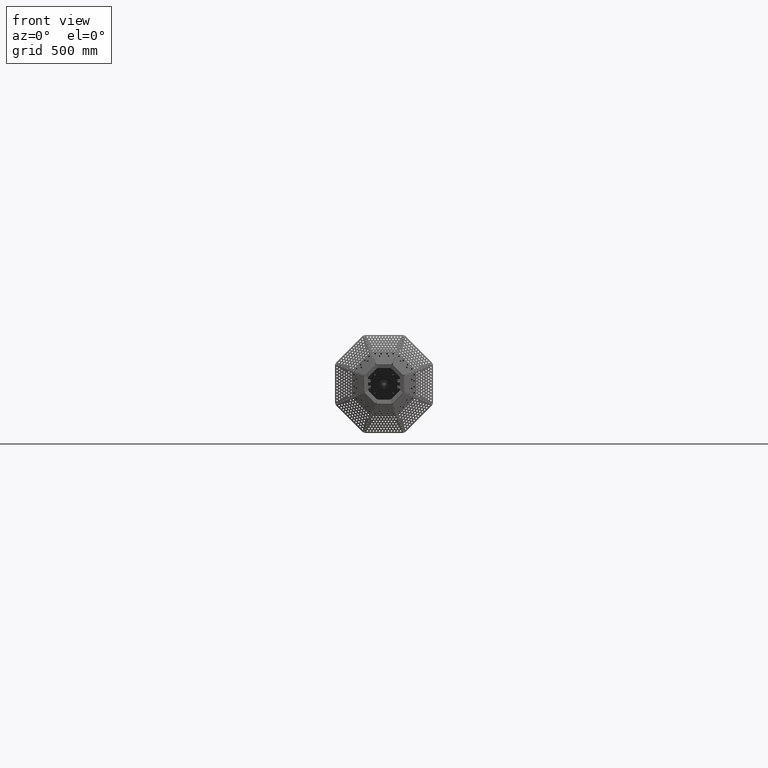
[diagram: clean part render]
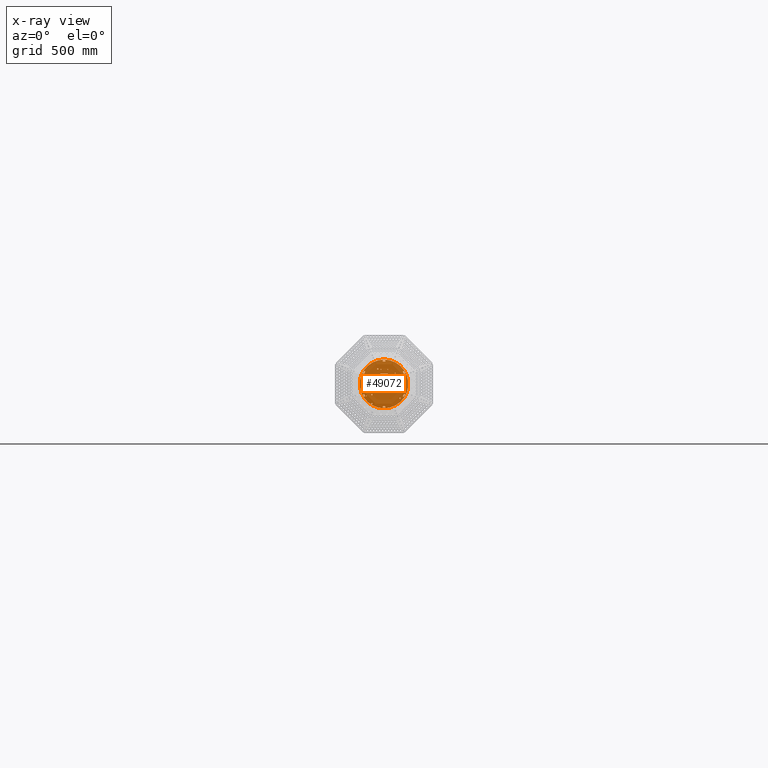
[diagram: x-ray — body ghosted, one internal face saturated and labeled with its STEP entity id]
A machine part, front view, then the same camera in x-ray: the body is ghosted and one INTERNAL B-rep face — a face not visible from any outside direction — is saturated and labeled: STEP entity #49072.
In plain terms, the highlighted planar face has unit normal (-0, -1, -0).
Its self-contained STEP definition (entity closure, byte-faithful):
#87 = CIRCLE ( 'NONE', #15737, 3.000000000000008000 ) ;
#89 = VERTEX_POINT ( 'NONE', #45002 ) ;
#217 = EDGE_CURVE ( 'NONE', #23410, #9624, #23650, .T. ) ;
#273 = VERTEX_POINT ( 'NONE', #39380 ) ;
#305 = EDGE_LOOP ( 'NONE', ( #52819, #23090 ) ) ;
#400 = AXIS2_PLACEMENT_3D ( 'NONE', #38354, #38348, #38162 ) ;
#561 = DIRECTION ( 'NONE',  ( 0.0000000000000000000, 1.000000000000000000, 0.0000000000000000000 ) ) ;
#579 = AXIS2_PLACEMENT_3D ( 'NONE', #24508, #24439, #24390 ) ;
#587 = VERTEX_POINT ( 'NONE', #8373 ) ;
#640 = ORIENTED_EDGE ( 'NONE', *, *, #46034, .F. ) ;
#821 = DIRECTION ( 'NONE',  ( 0.0000000000000000000, 0.0000000000000000000, 1.000000000000000000 ) ) ;
#837 = DIRECTION ( 'NONE',  ( 0.0000000000000000000, 1.000000000000000000, 0.0000000000000000000 ) ) ;
#841 = EDGE_CURVE ( 'NONE', #5684, #10306, #12409, .T. ) ;
#861 = AXIS2_PLACEMENT_3D ( 'NONE', #18453, #18409, #18265 ) ;
#874 = VERTEX_POINT ( 'NONE', #28130 ) ;
#892 = ORIENTED_EDGE ( 'NONE', *, *, #47534, .F. ) ;
#926 = EDGE_LOOP ( 'NONE', ( #51812, #2815, #54787, #12370 ) ) ;
#955 = CARTESIAN_POINT ( 'NONE',  ( 63.85452583877437900, 1.500000000000000000, 56.94491030965009800 ) ) ;
#1000 = AXIS2_PLACEMENT_3D ( 'NONE', #31409, #31367, #31290 ) ;
#1139 = DIRECTION ( 'NONE',  ( 0.0000000000000000000, 0.0000000000000000000, 1.000000000000000000 ) ) ;
#1178 = CIRCLE ( 'NONE', #51738, 2.500000000000002200 ) ;
#1208 = ORIENTED_EDGE ( 'NONE', *, *, #34941, .F. ) ;
#1211 = DIRECTION ( 'NONE',  ( 0.0000000000000000000, 1.000000000000000000, 0.0000000000000000000 ) ) ;
#1217 = DIRECTION ( 'NONE',  ( 0.0000000000000000000, -0.0000000000000000000, 1.000000000000000000 ) ) ;
#1225 = CARTESIAN_POINT ( 'NONE',  ( 43.00000000000000000, 1.500000000000000400, -1.630640067418198700E-013 ) ) ;
#1482 = CARTESIAN_POINT ( 'NONE',  ( 69.00000000000000000, 1.500000000000000000, 2.999999999999975600 ) ) ;
#1511 = EDGE_CURVE ( 'NONE', #2014, #36040, #48104, .T. ) ;
#1566 = CIRCLE ( 'NONE', #27028, 94.49999999999998600 ) ;
#1571 = CARTESIAN_POINT ( 'NONE',  ( 3.210753696629421200, 1.500000000000000000, -89.44395608575683800 ) ) ;
#1616 = CARTESIAN_POINT ( 'NONE',  ( -29.99999999999999600, 1.500000000000001300, 10.00000000000000000 ) ) ;
#1676 = DIRECTION ( 'NONE',  ( 1.000000000000000000, 1.858632295689436600E-016, 0.0000000000000000000 ) ) ;
#1750 = ORIENTED_EDGE ( 'NONE', *, *, #18427, .F. ) ;
#1811 = ORIENTED_EDGE ( 'NONE', *, *, #48376, .F. ) ;
#1877 = FACE_BOUND ( 'NONE', #39528, .T. ) ;
#2011 = CIRCLE ( 'NONE', #49731, 2.500000000000012400 ) ;
#2014 = VERTEX_POINT ( 'NONE', #5717 ) ;
#2115 = CARTESIAN_POINT ( 'NONE',  ( 7.285838599102492000E-015, 1.500000000000000000, 2.099999999999973400 ) ) ;
#2155 = CARTESIAN_POINT ( 'NONE',  ( -85.44656033520284700, 1.500000000000000000, 21.51038794928338000 ) ) ;
#2172 = EDGE_LOOP ( 'NONE', ( #49233, #38285 ) ) ;
#2212 = VERTEX_POINT ( 'NONE', #31676 ) ;
#2255 = VERTEX_POINT ( 'NONE', #48851 ) ;
#2263 = DIRECTION ( 'NONE',  ( 1.000000000000000000, 0.0000000000000000000, -3.469446951953611000E-015 ) ) ;
#2272 = CARTESIAN_POINT ( 'NONE',  ( -17.50000000000000400, 1.500000000000000000, -35.00000000000000000 ) ) ;
#2349 = DIRECTION ( 'NONE',  ( 3.843891905225345300E-016, 0.0000000000000000000, 1.000000000000000000 ) ) ;
#2445 = EDGE_LOOP ( 'NONE', ( #11463, #43170 ) ) ;
#2633 = DIRECTION ( 'NONE',  ( 0.0000000000000000000, 0.0000000000000000000, 1.000000000000000000 ) ) ;
#2680 = EDGE_CURVE ( 'NONE', #12986, #24916, #57980, .T. ) ;
#2681 = DIRECTION ( 'NONE',  ( 0.0000000000000000000, 0.0000000000000000000, 1.000000000000000000 ) ) ;
#2683 = CIRCLE ( 'NONE', #34238, 2.500000000000002200 ) ;
#2704 = DIRECTION ( 'NONE',  ( 0.0000000000000000000, 1.000000000000000000, 0.0000000000000000000 ) ) ;
#2716 = DIRECTION ( 'NONE',  ( 0.0000000000000000000, 1.000000000000000000, 0.0000000000000000000 ) ) ;
#2752 = VERTEX_POINT ( 'NONE', #15093 ) ;
#2760 = CARTESIAN_POINT ( 'NONE',  ( -70.50000000000000000, 1.500000000000000000, 46.50000000000000700 ) ) ;
#2762 = CARTESIAN_POINT ( 'NONE',  ( -48.49999999999999300, 1.500000000000000000, 43.00000000000000000 ) ) ;
#2783 = VERTEX_POINT ( 'NONE', #14383 ) ;
#2793 = CARTESIAN_POINT ( 'NONE',  ( -10.50000000000000500, 1.500000000000000000, -35.00000000000000000 ) ) ;
#2815 = ORIENTED_EDGE ( 'NONE', *, *, #32572, .F. ) ;
#2995 = EDGE_CURVE ( 'NONE', #57868, #12376, #19283, .T. ) ;
#3023 = VERTEX_POINT ( 'NONE', #47388 ) ;
#3128 = ORIENTED_EDGE ( 'NONE', *, *, #52030, .F. ) ;
#3283 = FACE_BOUND ( 'NONE', #13763, .T. ) ;
#3292 = CIRCLE ( 'NONE', #28093, 3.000000000000008000 ) ;
#3426 = AXIS2_PLACEMENT_3D ( 'NONE', #32983, #32920, #32879 ) ;
#3494 = DIRECTION ( 'NONE',  ( 0.8660254037844362700, 0.0000000000000000000, -0.5000000000000040000 ) ) ;
#3562 = DIRECTION ( 'NONE',  ( 0.0000000000000000000, 1.000000000000000000, 0.0000000000000000000 ) ) ;
#3579 = VERTEX_POINT ( 'NONE', #40040 ) ;
#3614 = DIRECTION ( 'NONE',  ( 0.0000000000000000000, 0.0000000000000000000, 1.000000000000000000 ) ) ;
#3630 = CARTESIAN_POINT ( 'NONE',  ( 0.0000000000000000000, 1.500000000000000000, 0.0000000000000000000 ) ) ;
#3647 = DIRECTION ( 'NONE',  ( 0.0000000000000000000, 1.000000000000000000, 0.0000000000000000000 ) ) ;
#3672 = EDGE_CURVE ( 'NONE', #23021, #47453, #22725, .T. ) ;
#3711 = CARTESIAN_POINT ( 'NONE',  ( 0.0000000000000000000, 1.500000000000000000, 0.0000000000000000000 ) ) ;
#3819 = EDGE_LOOP ( 'NONE', ( #13253, #48590, #37209, #29829, #49732 ) ) ;
#4036 = EDGE_CURVE ( 'NONE', #18846, #24481, #51411, .T. ) ;
#4209 = CIRCLE ( 'NONE', #41692, 89.50000000000000000 ) ;
#4536 = CARTESIAN_POINT ( 'NONE',  ( -11.99999999999999300, 1.499999999999999600, -56.50000000000000000 ) ) ;
#4591 = DIRECTION ( 'NONE',  ( 0.0000000000000000000, 0.0000000000000000000, 1.000000000000000000 ) ) ;
#4612 = DIRECTION ( 'NONE',  ( 0.0000000000000000000, 1.000000000000000000, 0.0000000000000000000 ) ) ;
#4668 = CARTESIAN_POINT ( 'NONE',  ( -69.00000000000000000, 1.500000000000000000, 6.000000000000000000 ) ) ;
#4727 = ORIENTED_EDGE ( 'NONE', *, *, #1511, .F. ) ;
#4738 = FACE_BOUND ( 'NONE', #47319, .T. ) ;
#4794 = CARTESIAN_POINT ( 'NONE',  ( 3.210753696630098900, 1.500000000000000000, 91.94395608575682400 ) ) ;
#4950 = CARTESIAN_POINT ( 'NONE',  ( -3.123504954873830300, 1.500000000000001300, -89.44547901820907000 ) ) ;
#5052 = CIRCLE ( 'NONE', #32746, 3.000000000000008000 ) ;
#5079 = VERTEX_POINT ( 'NONE', #34479 ) ;
#5137 = DIRECTION ( 'NONE',  ( 0.0000000000000000000, 0.0000000000000000000, 1.000000000000000000 ) ) ;
#5185 = CIRCLE ( 'NONE', #54452, 2.500000000000002200 ) ;
#5194 = DIRECTION ( 'NONE',  ( 0.0000000000000000000, 1.000000000000000000, 0.0000000000000000000 ) ) ;
#5207 = CARTESIAN_POINT ( 'NONE',  ( 48.00000000000000700, 1.500000000000000000, 17.00000000000000000 ) ) ;
#5287 = DIRECTION ( 'NONE',  ( 0.0000000000000000000, 0.0000000000000000000, -1.000000000000000000 ) ) ;
#5335 = VECTOR ( 'NONE', #40871, 999.9999999999998900 ) ;
#5336 = DIRECTION ( 'NONE',  ( 0.0000000000000000000, 1.000000000000000000, -0.0000000000000000000 ) ) ;
#5359 = CARTESIAN_POINT ( 'NONE',  ( 3.210753696629421200, 1.500000000000000000, -91.94395608575683800 ) ) ;
#5684 = VERTEX_POINT ( 'NONE', #1571 ) ;
#5717 = CARTESIAN_POINT ( 'NONE',  ( 20.85965004500336700, 1.500000000000000000, 24.39518395093570300 ) ) ;
#5729 = AXIS2_PLACEMENT_3D ( 'NONE', #51017, #50957, #50946 ) ;
#5768 = CARTESIAN_POINT ( 'NONE',  ( 0.0000000000000000000, 1.500000000000000000, 0.0000000000000000000 ) ) ;
#5780 = ORIENTED_EDGE ( 'NONE', *, *, #9072, .F. ) ;
#5798 = CIRCLE ( 'NONE', #40017, 2.500000000000002200 ) ;
#5935 = CIRCLE ( 'NONE', #16918, 89.50000000000000000 ) ;
#6169 = AXIS2_PLACEMENT_3D ( 'NONE', #955, #837, #821 ) ;
#6181 = FACE_BOUND ( 'NONE', #10632, .T. ) ;
#6213 = VECTOR ( 'NONE', #16528, 1000.000000000000000 ) ;
#6334 = AXIS2_PLACEMENT_3D ( 'NONE', #29629, #29615, #29554 ) ;
#6339 = DIRECTION ( 'NONE',  ( 0.0000000000000000000, 0.0000000000000000000, 1.000000000000000000 ) ) ;
#6380 = VERTEX_POINT ( 'NONE', #43418 ) ;
#6408 = DIRECTION ( 'NONE',  ( 0.0000000000000000000, 1.000000000000000000, 0.0000000000000000000 ) ) ;
#6530 = CARTESIAN_POINT ( 'NONE',  ( -48.99999999999999300, 1.500000000000000000, 79.00000000000000000 ) ) ;
#6568 = EDGE_CURVE ( 'NONE', #40813, #49342, #30316, .T. ) ;
#6757 = EDGE_CURVE ( 'NONE', #3023, #35971, #44659, .T. ) ;
#6910 = DIRECTION ( 'NONE',  ( 1.000000000000000000, 0.0000000000000000000, 8.260587980841936300E-017 ) ) ;
#6918 = EDGE_CURVE ( 'NONE', #33062, #55292, #25258, .T. ) ;
#6965 = CARTESIAN_POINT ( 'NONE',  ( -10.50000000000000200, 1.500000000000000000, -9.948259537489677800 ) ) ;
#7038 = VERTEX_POINT ( 'NONE', #31211 ) ;
#7297 = CARTESIAN_POINT ( 'NONE',  ( -81.23117854302140000, 1.500000000000000000, -40.69138377630177000 ) ) ;
#7555 = CARTESIAN_POINT ( 'NONE',  ( -24.39518395093623900, 1.500000000000000000, -20.85965004500274100 ) ) ;
#7562 = FACE_BOUND ( 'NONE', #48350, .T. ) ;
#7619 = EDGE_CURVE ( 'NONE', #53259, #23410, #34361, .T. ) ;
#7828 = CIRCLE ( 'NONE', #50766, 89.50000000000001400 ) ;
#7839 = CARTESIAN_POINT ( 'NONE',  ( 0.0000000000000000000, 1.500000000000000000, 0.0000000000000000000 ) ) ;
#7870 = EDGE_CURVE ( 'NONE', #10306, #40813, #22856, .T. ) ;
#7880 = DIRECTION ( 'NONE',  ( 0.0000000000000000000, 1.000000000000000000, 0.0000000000000000000 ) ) ;
#7895 = VECTOR ( 'NONE', #8760, 1000.000000000000000 ) ;
#8005 = ORIENTED_EDGE ( 'NONE', *, *, #4036, .F. ) ;
#8153 = EDGE_LOOP ( 'NONE', ( #46028, #52282, #26716, #9060 ) ) ;
#8174 = CARTESIAN_POINT ( 'NONE',  ( 3.298002438385645000, 1.500000000000000000, -94.44243315330456300 ) ) ;
#8327 = VECTOR ( 'NONE', #38864, 1000.000000000000000 ) ;
#8363 = CIRCLE ( 'NONE', #40748, 1.499999999999997800 ) ;
#8365 = CARTESIAN_POINT ( 'NONE',  ( -29.99999999999999600, 1.500000000000000000, 10.00000000000000000 ) ) ;
#8373 = CARTESIAN_POINT ( 'NONE',  ( -25.00000000000000700, 1.500000000000000000, -57.49999999999999300 ) ) ;
#8433 = CARTESIAN_POINT ( 'NONE',  ( 10.50000000000000200, 1.500000000000000000, -35.00000000000000000 ) ) ;
#8490 = CARTESIAN_POINT ( 'NONE',  ( 8.424250880212429400E-015, 1.500000000000000000, 2.100000000000013000 ) ) ;
#8500 = CIRCLE ( 'NONE', #6169, 2.499999999999995100 ) ;
#8521 = DIRECTION ( 'NONE',  ( 0.0000000000000000000, 1.000000000000000000, 0.0000000000000000000 ) ) ;
#8574 = DIRECTION ( 'NONE',  ( 0.8660254037844392600, 0.0000000000000000000, 0.4999999999999988300 ) ) ;
#8630 = CARTESIAN_POINT ( 'NONE',  ( 22.62741699796938000, 1.500000000000000000, -20.12741699796967900 ) ) ;
#8637 = DIRECTION ( 'NONE',  ( 0.0000000000000000000, 1.000000000000000000, 0.0000000000000000000 ) ) ;
#8692 = CARTESIAN_POINT ( 'NONE',  ( -81.23117854302140000, 1.500000000000000000, -43.19138377630176300 ) ) ;
#8760 = DIRECTION ( 'NONE',  ( 1.000000000000000000, 0.0000000000000000000, -4.011548038196370400E-015 ) ) ;
#8778 = EDGE_LOOP ( 'NONE', ( #48366, #19540, #35074, #39052, #48783 ) ) ;
#8913 = AXIS2_PLACEMENT_3D ( 'NONE', #1225, #1211, #1139 ) ;
#8940 = CIRCLE ( 'NONE', #11986, 1.500000000000001300 ) ;
#8991 = FACE_BOUND ( 'NONE', #31339, .T. ) ;
#9060 = ORIENTED_EDGE ( 'NONE', *, *, #2995, .T. ) ;
#9072 = EDGE_CURVE ( 'NONE', #9624, #34389, #19182, .T. ) ;
#9182 = DIRECTION ( 'NONE',  ( 0.0000000000000000000, 0.0000000000000000000, 1.000000000000000000 ) ) ;
#9254 = DIRECTION ( 'NONE',  ( 0.0000000000000000000, 1.000000000000000000, 0.0000000000000000000 ) ) ;
#9264 = ORIENTED_EDGE ( 'NONE', *, *, #44854, .F. ) ;
#9305 = CARTESIAN_POINT ( 'NONE',  ( -3.210753696630098900, 1.500000000000000000, -91.94395608575682400 ) ) ;
#9384 = CARTESIAN_POINT ( 'NONE',  ( -69.00000000000000000, 1.500000000000000000, -14.00000000000000000 ) ) ;
#9624 = VERTEX_POINT ( 'NONE', #36235 ) ;
#9691 = CARTESIAN_POINT ( 'NONE',  ( 24.39518395093609400, 1.500000000000000000, 20.85965004500291200 ) ) ;
#9928 = CARTESIAN_POINT ( 'NONE',  ( 47.00000000000000000, 1.500000000000000400, -1.760744328116459200E-013 ) ) ;
#10113 = VECTOR ( 'NONE', #57049, 1000.000000000000000 ) ;
#10140 = CARTESIAN_POINT ( 'NONE',  ( -3.298002438385645000, 1.500000000000000000, 94.44243315330456300 ) ) ;
#10153 = EDGE_CURVE ( 'NONE', #17485, #23646, #25497, .T. ) ;
#10206 = VERTEX_POINT ( 'NONE', #26613 ) ;
#10269 = VECTOR ( 'NONE', #41628, 1000.000000000000000 ) ;
#10284 = CARTESIAN_POINT ( 'NONE',  ( 79.02380956087434100, 1.500000000000001300, 42.01770486933649800 ) ) ;
#10306 = VERTEX_POINT ( 'NONE', #8174 ) ;
#10320 = AXIS2_PLACEMENT_3D ( 'NONE', #39790, #39726, #39714 ) ;
#10357 = ORIENTED_EDGE ( 'NONE', *, *, #49638, .F. ) ;
#10396 = ORIENTED_EDGE ( 'NONE', *, *, #13634, .F. ) ;
#10551 = DIRECTION ( 'NONE',  ( 0.0000000000000000000, 0.0000000000000000000, 1.000000000000000000 ) ) ;
#10620 = DIRECTION ( 'NONE',  ( 0.0000000000000000000, 1.000000000000000000, 0.0000000000000000000 ) ) ;
#10630 = CARTESIAN_POINT ( 'NONE',  ( 22.62741699796938000, 1.500000000000000000, -22.62741699796966100 ) ) ;
#10632 = EDGE_LOOP ( 'NONE', ( #29594, #53458 ) ) ;
#10870 = DIRECTION ( 'NONE',  ( -0.0000000000000000000, -0.0000000000000000000, -1.000000000000000000 ) ) ;
#10911 = CARTESIAN_POINT ( 'NONE',  ( -15.99999999999999600, 1.500000000000004900, 10.00000000000000000 ) ) ;
#10987 = DIRECTION ( 'NONE',  ( -0.0000000000000000000, -0.0000000000000000000, -1.000000000000000000 ) ) ;
#10999 = CARTESIAN_POINT ( 'NONE',  ( 30.00000000000000400, 1.500000000000001300, 10.00000000000000000 ) ) ;
#11002 = AXIS2_PLACEMENT_3D ( 'NONE', #7839, #29634, #33786 ) ;
#11099 = AXIS2_PLACEMENT_3D ( 'NONE', #54138, #54028, #53955 ) ;
#11189 = AXIS2_PLACEMENT_3D ( 'NONE', #48972, #48899, #48888 ) ;
#11270 = CARTESIAN_POINT ( 'NONE',  ( 20.85965004500336700, 1.500000000000000000, 24.39518395093570300 ) ) ;
#11271 = AXIS2_PLACEMENT_3D ( 'NONE', #54090, #45629, #51430 ) ;
#11288 = CIRCLE ( 'NONE', #29657, 2.500000000000012400 ) ;
#11315 = EDGE_LOOP ( 'NONE', ( #29474, #25735 ) ) ;
#11344 = DIRECTION ( 'NONE',  ( 0.0000000000000000000, 0.0000000000000000000, -1.000000000000000000 ) ) ;
#11416 = DIRECTION ( 'NONE',  ( 0.0000000000000000000, 1.000000000000000000, -0.0000000000000000000 ) ) ;
#11427 = CARTESIAN_POINT ( 'NONE',  ( 69.00000000000000000, 1.500000000000000000, 5.999999999999984000 ) ) ;
#11463 = ORIENTED_EDGE ( 'NONE', *, *, #41457, .F. ) ;
#11570 = EDGE_CURVE ( 'NONE', #41667, #42742, #13254, .T. ) ;
#11586 = ORIENTED_EDGE ( 'NONE', *, *, #12591, .F. ) ;
#11606 = DIRECTION ( 'NONE',  ( -0.8660254037844370400, 0.0000000000000000000, 0.5000000000000030000 ) ) ;
#11675 = DIRECTION ( 'NONE',  ( 0.0000000000000000000, 1.000000000000000000, 0.0000000000000000000 ) ) ;
#11714 = CARTESIAN_POINT ( 'NONE',  ( -81.23117854302078900, 1.500000000000000000, 43.19138377630292800 ) ) ;
#11718 = DIRECTION ( 'NONE',  ( 0.0000000000000000000, 0.0000000000000000000, 1.000000000000000000 ) ) ;
#11732 = DIRECTION ( 'NONE',  ( 0.0000000000000000000, 1.000000000000000000, 0.0000000000000000000 ) ) ;
#11833 = CARTESIAN_POINT ( 'NONE',  ( -69.00000000000000000, 1.500000000000000000, 6.000000000000000000 ) ) ;
#11851 = ORIENTED_EDGE ( 'NONE', *, *, #43093, .F. ) ;
#11983 = DIRECTION ( 'NONE',  ( 0.0000000000000000000, 0.0000000000000000000, 1.000000000000000000 ) ) ;
#11986 = AXIS2_PLACEMENT_3D ( 'NONE', #59124, #17785, #28830 ) ;
#12047 = DIRECTION ( 'NONE',  ( 0.0000000000000000000, 1.000000000000000000, 0.0000000000000000000 ) ) ;
#12098 = ORIENTED_EDGE ( 'NONE', *, *, #14958, .F. ) ;
#12102 = CARTESIAN_POINT ( 'NONE',  ( -11.99999999999999300, 1.499999999999999600, -58.00000000000000000 ) ) ;
#12121 = DIRECTION ( 'NONE',  ( 0.0000000000000000000, 0.0000000000000000000, 1.000000000000000000 ) ) ;
#12125 = CIRCLE ( 'NONE', #54376, 2.499999999999994200 ) ;
#12130 = DIRECTION ( 'NONE',  ( 0.0000000000000000000, 1.000000000000000000, 0.0000000000000000000 ) ) ;
#12182 = CARTESIAN_POINT ( 'NONE',  ( -70.50000000000000000, 1.500000000000000000, 48.00000000000000000 ) ) ;
#12245 = ORIENTED_EDGE ( 'NONE', *, *, #39061, .F. ) ;
#12328 = VERTEX_POINT ( 'NONE', #38196 ) ;
#12370 = ORIENTED_EDGE ( 'NONE', *, *, #18004, .F. ) ;
#12376 = VERTEX_POINT ( 'NONE', #37620 ) ;
#12387 = CIRCLE ( 'NONE', #11189, 2.500000000000002200 ) ;
#12409 = CIRCLE ( 'NONE', #20835, 2.500000000000002200 ) ;
#12439 = CARTESIAN_POINT ( 'NONE',  ( -3.123504954873188100, 1.500000000000000000, 89.44547901820909900 ) ) ;
#12526 = FACE_BOUND ( 'NONE', #44594, .T. ) ;
#12591 = EDGE_CURVE ( 'NONE', #49044, #20433, #56097, .T. ) ;
#12713 = CARTESIAN_POINT ( 'NONE',  ( 0.0000000000000000000, 1.500000000000000000, 0.0000000000000000000 ) ) ;
#12766 = CIRCLE ( 'NONE', #20399, 2.499999999999994200 ) ;
#12771 = AXIS2_PLACEMENT_3D ( 'NONE', #25055, #24726, #25001 ) ;
#12915 = CARTESIAN_POINT ( 'NONE',  ( -47.00000000000000700, 1.500000000000000400, -2.099999999999824200 ) ) ;
#12963 = CARTESIAN_POINT ( 'NONE',  ( 75.90030460599956500, 1.500000000000001300, -47.42777414887272200 ) ) ;
#12980 = LINE ( 'NONE', #27713, #35801 ) ;
#12986 = VERTEX_POINT ( 'NONE', #22657 ) ;
#13134 = DIRECTION ( 'NONE',  ( -0.0000000000000000000, -0.0000000000000000000, -1.000000000000000000 ) ) ;
#13176 = AXIS2_PLACEMENT_3D ( 'NONE', #26936, #29195, #46282 ) ;
#13187 = CIRCLE ( 'NONE', #48498, 3.000000000000008000 ) ;
#13253 = ORIENTED_EDGE ( 'NONE', *, *, #46566, .F. ) ;
#13254 = CIRCLE ( 'NONE', #18690, 2.099999999999980500 ) ;
#13258 = EDGE_CURVE ( 'NONE', #42742, #7038, #47392, .T. ) ;
#13259 = CARTESIAN_POINT ( 'NONE',  ( 16.00000000000000400, 1.499999999999997300, 10.00000000000000000 ) ) ;
#13356 = DIRECTION ( 'NONE',  ( 0.0000000000000000000, 0.0000000000000000000, 1.000000000000000000 ) ) ;
#13414 = DIRECTION ( 'NONE',  ( 0.0000000000000000000, 1.000000000000000000, 0.0000000000000000000 ) ) ;
#13441 = VERTEX_POINT ( 'NONE', #10284 ) ;
#13453 = AXIS2_PLACEMENT_3D ( 'NONE', #5768, #49497, #32821 ) ;
#13488 = CARTESIAN_POINT ( 'NONE',  ( 70.50000000000000000, 1.500000000000000000, 15.00000000000000000 ) ) ;
#13634 = EDGE_CURVE ( 'NONE', #33573, #5079, #87, .T. ) ;
#13763 = EDGE_LOOP ( 'NONE', ( #55082, #42588, #30634, #45562, #22161 ) ) ;
#13887 = AXIS2_PLACEMENT_3D ( 'NONE', #29369, #29330, #29262 ) ;
#13899 = EDGE_CURVE ( 'NONE', #16679, #40743, #23478, .T. ) ;
#13967 = FACE_BOUND ( 'NONE', #39467, .T. ) ;
#14087 = LINE ( 'NONE', #10999, #46283 ) ;
#14138 = AXIS2_PLACEMENT_3D ( 'NONE', #52303, #52256, #52198 ) ;
#14161 = AXIS2_PLACEMENT_3D ( 'NONE', #31686, #31632, #31541 ) ;
#14288 = VERTEX_POINT ( 'NONE', #58696 ) ;
#14366 = ORIENTED_EDGE ( 'NONE', *, *, #21421, .F. ) ;
#14383 = CARTESIAN_POINT ( 'NONE',  ( 48.00000000000000700, 1.500000000000000000, 19.50000000000000400 ) ) ;
#14390 = CARTESIAN_POINT ( 'NONE',  ( -26.51650429449591000, 1.500000000000000000, -22.98097038856235500 ) ) ;
#14509 = EDGE_LOOP ( 'NONE', ( #42993, #3128, #34611, #31456 ) ) ;
#14563 = CIRCLE ( 'NONE', #38911, 1.499999999999994400 ) ;
#14602 = EDGE_CURVE ( 'NONE', #20814, #20691, #21267, .T. ) ;
#14686 = CARTESIAN_POINT ( 'NONE',  ( 26.51650429449539100, 1.500000000000000000, -22.98097038856295500 ) ) ;
#14724 = ORIENTED_EDGE ( 'NONE', *, *, #25156, .F. ) ;
#14880 = ORIENTED_EDGE ( 'NONE', *, *, #6757, .F. ) ;
#14958 = EDGE_CURVE ( 'NONE', #12328, #22391, #26922, .T. ) ;
#15093 = CARTESIAN_POINT ( 'NONE',  ( -79.02380956087347400, 1.500000000000000000, 42.01770486933817500 ) ) ;
#15110 = DIRECTION ( 'NONE',  ( -1.000000000000000000, 0.0000000000000000000, 3.469446951953611000E-015 ) ) ;
#15144 = CIRCLE ( 'NONE', #58640, 1.500000000000011800 ) ;
#15389 = VERTEX_POINT ( 'NONE', #28023 ) ;
#15393 = CARTESIAN_POINT ( 'NONE',  ( 30.00000000000000400, 1.500000000000000000, 10.00000000000000000 ) ) ;
#15398 = FACE_BOUND ( 'NONE', #8778, .T. ) ;
#15410 = DIRECTION ( 'NONE',  ( 0.0000000000000000000, 0.0000000000000000000, 1.000000000000000000 ) ) ;
#15507 = VECTOR ( 'NONE', #13134, 1000.000000000000000 ) ;
#15531 = VERTEX_POINT ( 'NONE', #25936 ) ;
#15671 = DIRECTION ( 'NONE',  ( -0.7071067811865441300, 0.0000000000000000000, 0.7071067811865510100 ) ) ;
#15686 = CARTESIAN_POINT ( 'NONE',  ( -7.285838599102492000E-015, 1.500000000000000000, -2.099999999999973400 ) ) ;
#15737 = AXIS2_PLACEMENT_3D ( 'NONE', #4668, #4612, #4591 ) ;
#15872 = VERTEX_POINT ( 'NONE', #17627 ) ;
#15920 = EDGE_CURVE ( 'NONE', #15531, #50023, #18289, .T. ) ;
#16061 = DIRECTION ( 'NONE',  ( 1.000000000000000000, 0.0000000000000000000, -4.163336342344316500E-015 ) ) ;
#16078 = VERTEX_POINT ( 'NONE', #12439 ) ;
#16107 = DIRECTION ( 'NONE',  ( 0.0000000000000000000, 1.000000000000000000, 0.0000000000000000000 ) ) ;
#16121 = CARTESIAN_POINT ( 'NONE',  ( 24.74873734152939900, 1.500000000000000000, 24.74873734152892600 ) ) ;
#16319 = EDGE_CURVE ( 'NONE', #29180, #35667, #1178, .T. ) ;
#16364 = CIRCLE ( 'NONE', #21855, 2.500000000000000900 ) ;
#16406 = EDGE_CURVE ( 'NONE', #273, #47682, #21059, .T. ) ;
#16454 = CARTESIAN_POINT ( 'NONE',  ( 46.99999999999999300, 1.500000000000000000, -2.100000000000136400 ) ) ;
#16517 = AXIS2_PLACEMENT_3D ( 'NONE', #2155, #8521, #27536 ) ;
#16528 = DIRECTION ( 'NONE',  ( 1.000000000000000000, 2.787948443534154900E-016, -0.0000000000000000000 ) ) ;
#16532 = ORIENTED_EDGE ( 'NONE', *, *, #13258, .F. ) ;
#16659 = AXIS2_PLACEMENT_3D ( 'NONE', #30918, #30841, #30828 ) ;
#16679 = VERTEX_POINT ( 'NONE', #57253 ) ;
#16774 = AXIS2_PLACEMENT_3D ( 'NONE', #27248, #27205, #27188 ) ;
#16819 = FACE_BOUND ( 'NONE', #20125, .T. ) ;
#16837 = CARTESIAN_POINT ( 'NONE',  ( 30.00000000000000400, 1.500000000000001300, -10.00000000000000000 ) ) ;
#16918 = AXIS2_PLACEMENT_3D ( 'NONE', #29131, #29057, #28997 ) ;
#17013 = EDGE_CURVE ( 'NONE', #3579, #16078, #32421, .T. ) ;
#17124 = CARTESIAN_POINT ( 'NONE',  ( -10.50000000000000500, 1.500000000000000000, -42.00000000000000000 ) ) ;
#17306 = LINE ( 'NONE', #32117, #41621 ) ;
#17326 = ORIENTED_EDGE ( 'NONE', *, *, #27662, .F. ) ;
#17377 = AXIS2_PLACEMENT_3D ( 'NONE', #34583, #34393, #34199 ) ;
#17383 = EDGE_CURVE ( 'NONE', #49342, #40829, #12387, .T. ) ;
#17485 = VERTEX_POINT ( 'NONE', #47466 ) ;
#17590 = DIRECTION ( 'NONE',  ( 0.0000000000000000000, 1.000000000000000000, -0.0000000000000000000 ) ) ;
#17627 = CARTESIAN_POINT ( 'NONE',  ( -46.99999999999999300, 1.500000000000000000, 2.100000000000136400 ) ) ;
#17684 = CARTESIAN_POINT ( 'NONE',  ( 0.0000000000000000000, 1.500000000000000000, -97.50000000000000000 ) ) ;
#17757 = VECTOR ( 'NONE', #48060, 1000.000000000000000 ) ;
#17785 = DIRECTION ( 'NONE',  ( 0.0000000000000000000, 1.000000000000000000, 0.0000000000000000000 ) ) ;
#17858 = VECTOR ( 'NONE', #38432, 1000.000000000000000 ) ;
#17954 = DIRECTION ( 'NONE',  ( 0.0000000000000000000, 0.0000000000000000000, 1.000000000000000000 ) ) ;
#18004 = EDGE_CURVE ( 'NONE', #28811, #42863, #17306, .T. ) ;
#18015 = DIRECTION ( 'NONE',  ( 0.0000000000000000000, 1.000000000000000000, 0.0000000000000000000 ) ) ;
#18048 = EDGE_CURVE ( 'NONE', #587, #30683, #20831, .T. ) ;
#18064 = CARTESIAN_POINT ( 'NONE',  ( -25.00000000000000700, 1.500000000000000000, -60.00000000000000000 ) ) ;
#18079 = DIRECTION ( 'NONE',  ( 0.0000000000000000000, 1.000000000000000000, 0.0000000000000000000 ) ) ;
#18090 = EDGE_CURVE ( 'NONE', #6380, #43919, #54518, .T. ) ;
#18091 = EDGE_CURVE ( 'NONE', #41324, #38361, #5935, .T. ) ;
#18256 = FACE_BOUND ( 'NONE', #21306, .T. ) ;
#18265 = DIRECTION ( 'NONE',  ( -1.000000000000000000, 0.0000000000000000000, 1.110223024625149400E-014 ) ) ;
#18289 = LINE ( 'NONE', #16837, #6213 ) ;
#18409 = DIRECTION ( 'NONE',  ( 0.0000000000000000000, 1.000000000000000000, 0.0000000000000000000 ) ) ;
#18427 = EDGE_CURVE ( 'NONE', #57373, #40848, #21555, .T. ) ;
#18453 = CARTESIAN_POINT ( 'NONE',  ( -22.62741699796989500, 1.500000000000000000, -22.62741699796914600 ) ) ;
#18501 = AXIS2_PLACEMENT_3D ( 'NONE', #2793, #2716, #2681 ) ;
#18690 = AXIS2_PLACEMENT_3D ( 'NONE', #9928, #561, #57085 ) ;
#18726 = EDGE_LOOP ( 'NONE', ( #640, #16532, #55722, #55751 ) ) ;
#18791 = DIRECTION ( 'NONE',  ( 0.0000000000000000000, 0.0000000000000000000, -1.000000000000000000 ) ) ;
#18812 = ORIENTED_EDGE ( 'NONE', *, *, #30836, .F. ) ;
#18846 = VERTEX_POINT ( 'NONE', #7555 ) ;
#18903 = ORIENTED_EDGE ( 'NONE', *, *, #48645, .F. ) ;
#19007 = EDGE_LOOP ( 'NONE', ( #8005, #23764, #29897, #52743, #12245 ) ) ;
#19020 = EDGE_CURVE ( 'NONE', #34389, #20614, #41574, .T. ) ;
#19182 = LINE ( 'NONE', #50443, #17757 ) ;
#19215 = EDGE_CURVE ( 'NONE', #44777, #53069, #55919, .T. ) ;
#19243 = VERTEX_POINT ( 'NONE', #38760 ) ;
#19252 = DIRECTION ( 'NONE',  ( 0.8660254037844431500, 0.0000000000000000000, 0.4999999999999922800 ) ) ;
#19262 = ORIENTED_EDGE ( 'NONE', *, *, #44949, .F. ) ;
#19283 = LINE ( 'NONE', #56806, #17858 ) ;
#19315 = DIRECTION ( 'NONE',  ( 0.0000000000000000000, 1.000000000000000000, 0.0000000000000000000 ) ) ;
#19327 = CARTESIAN_POINT ( 'NONE',  ( 78.02042484639200400, 1.500000000000000000, 48.75257230945356900 ) ) ;
#19464 = EDGE_CURVE ( 'NONE', #13441, #23021, #58012, .T. ) ;
#19540 = ORIENTED_EDGE ( 'NONE', *, *, #47692, .F. ) ;
#19675 = FACE_BOUND ( 'NONE', #19007, .T. ) ;
#19811 = AXIS2_PLACEMENT_3D ( 'NONE', #38784, #38716, #38672 ) ;
#19928 = VECTOR ( 'NONE', #6910, 1000.000000000000000 ) ;
#19945 = VERTEX_POINT ( 'NONE', #50102 ) ;
#19964 = AXIS2_PLACEMENT_3D ( 'NONE', #2762, #2704, #2633 ) ;
#20058 = CARTESIAN_POINT ( 'NONE',  ( -26.51650429449540500, 1.500000000000000000, 22.98097038856294100 ) ) ;
#20125 = EDGE_LOOP ( 'NONE', ( #45023, #11586 ) ) ;
#20135 = EDGE_CURVE ( 'NONE', #34030, #2752, #7828, .T. ) ;
#20157 = CARTESIAN_POINT ( 'NONE',  ( 26.51650429449539100, 1.500000000000000000, -22.98097038856295500 ) ) ;
#20177 = EDGE_LOOP ( 'NONE', ( #37142, #14880, #9264, #54773, #54111, #36197 ) ) ;
#20191 = DIRECTION ( 'NONE',  ( 0.7071067811865534600, 0.0000000000000000000, 0.7071067811865415800 ) ) ;
#20399 = AXIS2_PLACEMENT_3D ( 'NONE', #35163, #35090, #35031 ) ;
#20433 = VERTEX_POINT ( 'NONE', #36105 ) ;
#20477 = DIRECTION ( 'NONE',  ( 0.7071067811865430200, -0.0000000000000000000, -0.7071067811865521200 ) ) ;
#20504 = VERTEX_POINT ( 'NONE', #33819 ) ;
#20595 = EDGE_CURVE ( 'NONE', #38361, #38034, #52144, .T. ) ;
#20614 = VERTEX_POINT ( 'NONE', #30761 ) ;
#20691 = VERTEX_POINT ( 'NONE', #29367 ) ;
#20814 = VERTEX_POINT ( 'NONE', #25489 ) ;
#20831 = CIRCLE ( 'NONE', #51821, 2.500000000000002200 ) ;
#20835 = AXIS2_PLACEMENT_3D ( 'NONE', #50817, #23309, #18791 ) ;
#21059 = CIRCLE ( 'NONE', #32149, 94.50000000000002800 ) ;
#21181 = EDGE_CURVE ( 'NONE', #20504, #30337, #11288, .T. ) ;
#21267 = CIRCLE ( 'NONE', #49369, 3.000000000000008000 ) ;
#21306 = EDGE_LOOP ( 'NONE', ( #28481, #1208 ) ) ;
#21358 = CARTESIAN_POINT ( 'NONE',  ( -48.49999999999999300, 1.500000000000000000, 40.49999999999999300 ) ) ;
#21421 = EDGE_CURVE ( 'NONE', #53069, #44777, #24026, .T. ) ;
#21555 = LINE ( 'NONE', #20157, #56703 ) ;
#21826 = CIRCLE ( 'NONE', #19811, 2.500000000000012400 ) ;
#21855 = AXIS2_PLACEMENT_3D ( 'NONE', #57669, #57682, #56690 ) ;
#21868 = EDGE_CURVE ( 'NONE', #54460, #19945, #37623, .T. ) ;
#22077 = CIRCLE ( 'NONE', #49899, 97.50000000000000000 ) ;
#22149 = CARTESIAN_POINT ( 'NONE',  ( -48.99999999999999300, 1.500000000000000000, 81.50000000000000000 ) ) ;
#22161 = ORIENTED_EDGE ( 'NONE', *, *, #19464, .F. ) ;
#22182 = DIRECTION ( 'NONE',  ( 0.7071067811865452400, -0.0000000000000000000, -0.7071067811865497900 ) ) ;
#22244 = CARTESIAN_POINT ( 'NONE',  ( -20.85965004500299700, 1.500000000000000000, 24.39518395093602300 ) ) ;
#22391 = VERTEX_POINT ( 'NONE', #55758 ) ;
#22657 = CARTESIAN_POINT ( 'NONE',  ( 45.00000000000001400, 1.499999999999999600, -41.50000000000000000 ) ) ;
#22725 = CIRCLE ( 'NONE', #33658, 2.499999999999999100 ) ;
#22738 = EDGE_CURVE ( 'NONE', #56304, #57868, #57572, .T. ) ;
#22856 = CIRCLE ( 'NONE', #17377, 94.50000000000000000 ) ;
#22952 = CIRCLE ( 'NONE', #52173, 2.099999999999981400 ) ;
#22981 = VECTOR ( 'NONE', #15110, 1000.000000000000000 ) ;
#23008 = EDGE_CURVE ( 'NONE', #39497, #34030, #31011, .T. ) ;
#23017 = AXIS2_PLACEMENT_3D ( 'NONE', #9305, #32423, #47244 ) ;
#23021 = VERTEX_POINT ( 'NONE', #38493 ) ;
#23022 = ORIENTED_EDGE ( 'NONE', *, *, #47266, .F. ) ;
#23090 = ORIENTED_EDGE ( 'NONE', *, *, #39276, .F. ) ;
#23187 = VERTEX_POINT ( 'NONE', #33672 ) ;
#23247 = AXIS2_PLACEMENT_3D ( 'NONE', #10630, #10620, #10551 ) ;
#23309 = DIRECTION ( 'NONE',  ( 0.0000000000000000000, 1.000000000000000000, -0.0000000000000000000 ) ) ;
#23314 = EDGE_CURVE ( 'NONE', #52085, #2783, #38143, .T. ) ;
#23383 = ORIENTED_EDGE ( 'NONE', *, *, #32235, .F. ) ;
#23410 = VERTEX_POINT ( 'NONE', #27706 ) ;
#23478 = CIRCLE ( 'NONE', #46655, 97.50000000000000000 ) ;
#23515 = EDGE_CURVE ( 'NONE', #16078, #34650, #52483, .T. ) ;
#23646 = VERTEX_POINT ( 'NONE', #21358 ) ;
#23650 = CIRCLE ( 'NONE', #54977, 6.999999999999999100 ) ;
#23680 = VECTOR ( 'NONE', #20191, 1000.000000000000100 ) ;
#23695 = EDGE_CURVE ( 'NONE', #47453, #35568, #40943, .T. ) ;
#23764 = ORIENTED_EDGE ( 'NONE', *, *, #57760, .F. ) ;
#23843 = DIRECTION ( 'NONE',  ( 0.0000000000000000000, 0.0000000000000000000, 1.000000000000000000 ) ) ;
#23848 = LINE ( 'NONE', #2115, #46837 ) ;
#23890 = DIRECTION ( 'NONE',  ( 0.0000000000000000000, 1.000000000000000000, 0.0000000000000000000 ) ) ;
#23920 = CIRCLE ( 'NONE', #44612, 2.500000000000002200 ) ;
#23946 = EDGE_CURVE ( 'NONE', #56515, #55435, #50992, .T. ) ;
#23963 = CARTESIAN_POINT ( 'NONE',  ( -3.210753696629421200, 1.500000000000000000, 91.94395608575683800 ) ) ;
#24026 = CIRCLE ( 'NONE', #28511, 3.000000000000008000 ) ;
#24248 = ORIENTED_EDGE ( 'NONE', *, *, #217, .F. ) ;
#24359 = CARTESIAN_POINT ( 'NONE',  ( 83.43854752516774900, 1.500000000000000000, -44.36506268326827000 ) ) ;
#24390 = DIRECTION ( 'NONE',  ( 0.0000000000000000000, 0.0000000000000000000, 1.000000000000000000 ) ) ;
#24439 = DIRECTION ( 'NONE',  ( 0.0000000000000000000, 1.000000000000000000, 0.0000000000000000000 ) ) ;
#24481 = VERTEX_POINT ( 'NONE', #58494 ) ;
#24508 = CARTESIAN_POINT ( 'NONE',  ( -24.74873734152901200, 1.500000000000000000, 24.74873734152931000 ) ) ;
#24605 = FACE_BOUND ( 'NONE', #14509, .T. ) ;
#24680 = CARTESIAN_POINT ( 'NONE',  ( 17.50000000000000000, 1.500000000000000000, -16.94825953748967600 ) ) ;
#24718 = EDGE_CURVE ( 'NONE', #47747, #874, #58835, .T. ) ;
#24726 = DIRECTION ( 'NONE',  ( 0.0000000000000000000, 1.000000000000000000, 0.0000000000000000000 ) ) ;
#24855 = CIRCLE ( 'NONE', #5729, 1.499999999999994400 ) ;
#24916 = VERTEX_POINT ( 'NONE', #43091 ) ;
#25001 = DIRECTION ( 'NONE',  ( 0.0000000000000000000, 0.0000000000000000000, -1.000000000000000000 ) ) ;
#25055 = CARTESIAN_POINT ( 'NONE',  ( 0.0000000000000000000, 1.500000000000000000, 0.0000000000000000000 ) ) ;
#25134 = DIRECTION ( 'NONE',  ( 0.0000000000000000000, 1.000000000000000000, 0.0000000000000000000 ) ) ;
#25148 = ORIENTED_EDGE ( 'NONE', *, *, #19215, .F. ) ;
#25156 = EDGE_CURVE ( 'NONE', #46300, #89, #55941, .T. ) ;
#25258 = CIRCLE ( 'NONE', #40313, 1.500000000000001300 ) ;
#25489 = CARTESIAN_POINT ( 'NONE',  ( 69.00000000000000000, 1.500000000000000000, -17.00000000000002500 ) ) ;
#25497 = CIRCLE ( 'NONE', #43903, 2.500000000000002200 ) ;
#25508 = EDGE_CURVE ( 'NONE', #874, #47747, #46582, .T. ) ;
#25735 = ORIENTED_EDGE ( 'NONE', *, *, #56739, .F. ) ;
#25762 = CARTESIAN_POINT ( 'NONE',  ( -75.90030460599990600, 1.500000000000001300, 47.42777414887218200 ) ) ;
#25819 = VERTEX_POINT ( 'NONE', #37576 ) ;
#25936 = CARTESIAN_POINT ( 'NONE',  ( 16.00000000000000400, 1.499999999999997300, -10.00000000000000000 ) ) ;
#25957 = AXIS2_PLACEMENT_3D ( 'NONE', #12182, #12130, #12121 ) ;
#26013 = FACE_BOUND ( 'NONE', #40966, .T. ) ;
#26015 = CIRCLE ( 'NONE', #579, 2.500000000000012400 ) ;
#26320 = EDGE_CURVE ( 'NONE', #48119, #12328, #26015, .T. ) ;
#26450 = CARTESIAN_POINT ( 'NONE',  ( 0.0000000000000000000, 1.500000000000000000, 0.0000000000000000000 ) ) ;
#26613 = CARTESIAN_POINT ( 'NONE',  ( 15.00000000000000700, 1.499999999999999600, -59.50000000000000000 ) ) ;
#26716 = ORIENTED_EDGE ( 'NONE', *, *, #22738, .T. ) ;
#26761 = AXIS2_PLACEMENT_3D ( 'NONE', #32794, #32731, #32687 ) ;
#26922 = CIRCLE ( 'NONE', #10320, 2.500000000000012400 ) ;
#26936 = CARTESIAN_POINT ( 'NONE',  ( 0.0000000000000000000, 1.500000000000000000, 0.0000000000000000000 ) ) ;
#26958 = DIRECTION ( 'NONE',  ( 0.0000000000000000000, 0.0000000000000000000, 1.000000000000000000 ) ) ;
#26976 = DIRECTION ( 'NONE',  ( 0.0000000000000000000, 1.000000000000000000, 0.0000000000000000000 ) ) ;
#26985 = VERTEX_POINT ( 'NONE', #7297 ) ;
#27028 = AXIS2_PLACEMENT_3D ( 'NONE', #32615, #32550, #32479 ) ;
#27065 = CARTESIAN_POINT ( 'NONE',  ( -43.00000000000000000, 1.500000000000000400, 1.630640067418198700E-013 ) ) ;
#27076 = CARTESIAN_POINT ( 'NONE',  ( 3.123504954873188100, 1.500000000000000000, -89.44547901820909900 ) ) ;
#27121 = AXIS2_PLACEMENT_3D ( 'NONE', #50609, #50587, #50553 ) ;
#27188 = DIRECTION ( 'NONE',  ( 0.8660254037844330500, 0.0000000000000000000, -0.5000000000000095500 ) ) ;
#27205 = DIRECTION ( 'NONE',  ( 0.0000000000000000000, 1.000000000000000000, 0.0000000000000000000 ) ) ;
#27248 = CARTESIAN_POINT ( 'NONE',  ( 81.23117854302046200, 1.500000000000000000, -43.19138377630349600 ) ) ;
#27369 = CARTESIAN_POINT ( 'NONE',  ( -78.02042484639099500, 1.500000000000000000, 51.25257230945523200 ) ) ;
#27464 = EDGE_CURVE ( 'NONE', #30337, #25819, #35947, .T. ) ;
#27482 = FACE_BOUND ( 'NONE', #926, .T. ) ;
#27536 = DIRECTION ( 'NONE',  ( 0.0000000000000000000, 0.0000000000000000000, 1.000000000000000000 ) ) ;
#27550 = AXIS2_PLACEMENT_3D ( 'NONE', #55368, #55354, #55298 ) ;
#27662 = EDGE_CURVE ( 'NONE', #43919, #48119, #38094, .T. ) ;
#27706 = CARTESIAN_POINT ( 'NONE',  ( 17.50000000000000000, 1.500000000000000000, -35.00000000000000000 ) ) ;
#27710 = CARTESIAN_POINT ( 'NONE',  ( -17.49999999999999600, 1.500000000000000000, -16.94825953748967600 ) ) ;
#27713 = CARTESIAN_POINT ( 'NONE',  ( 22.98097038856265700, 1.500000000000000000, -26.51650429449564000 ) ) ;
#27740 = ORIENTED_EDGE ( 'NONE', *, *, #7619, .F. ) ;
#27967 = DIRECTION ( 'NONE',  ( -0.7071067811865435800, 0.0000000000000000000, 0.7071067811865515700 ) ) ;
#28003 = VERTEX_POINT ( 'NONE', #53101 ) ;
#28023 = CARTESIAN_POINT ( 'NONE',  ( 81.23117854302046200, 1.500000000000000000, -40.69138377630349600 ) ) ;
#28093 = AXIS2_PLACEMENT_3D ( 'NONE', #32338, #17590, #58508 ) ;
#28130 = CARTESIAN_POINT ( 'NONE',  ( -85.44656033520284700, 1.500000000000000000, 24.01038794928338800 ) ) ;
#28151 = CIRCLE ( 'NONE', #23247, 2.499999999999981300 ) ;
#28432 = ORIENTED_EDGE ( 'NONE', *, *, #18048, .F. ) ;
#28481 = ORIENTED_EDGE ( 'NONE', *, *, #10153, .F. ) ;
#28511 = AXIS2_PLACEMENT_3D ( 'NONE', #9384, #9254, #9182 ) ;
#28559 = ORIENTED_EDGE ( 'NONE', *, *, #43022, .F. ) ;
#28606 = AXIS2_PLACEMENT_3D ( 'NONE', #53027, #37040, #57749 ) ;
#28635 = DIRECTION ( 'NONE',  ( 0.0000000000000000000, 0.0000000000000000000, 1.000000000000000000 ) ) ;
#28650 = DIRECTION ( 'NONE',  ( 0.0000000000000000000, 1.000000000000000000, 0.0000000000000000000 ) ) ;
#28707 = CARTESIAN_POINT ( 'NONE',  ( -47.00000000000000000, 1.500000000000000400, 1.760744328116459200E-013 ) ) ;
#28811 = VERTEX_POINT ( 'NONE', #31391 ) ;
#28830 = DIRECTION ( 'NONE',  ( 0.0000000000000000000, 0.0000000000000000000, 1.000000000000000000 ) ) ;
#28847 = CARTESIAN_POINT ( 'NONE',  ( -3.210753696630098900, 1.500000000000000000, -89.44395608575682400 ) ) ;
#28929 = FACE_BOUND ( 'NONE', #51638, .T. ) ;
#28997 = DIRECTION ( 'NONE',  ( 0.8660254037844397100, 0.0000000000000000000, 0.4999999999999979500 ) ) ;
#29010 = VERTEX_POINT ( 'NONE', #27076 ) ;
#29057 = DIRECTION ( 'NONE',  ( -0.0000000000000000000, -1.000000000000000000, 0.0000000000000000000 ) ) ;
#29088 = DIRECTION ( 'NONE',  ( 0.0000000000000000000, 1.000000000000000000, 0.0000000000000000000 ) ) ;
#29131 = CARTESIAN_POINT ( 'NONE',  ( 0.0000000000000000000, 1.500000000000000000, 0.0000000000000000000 ) ) ;
#29156 = CARTESIAN_POINT ( 'NONE',  ( -22.98097038856321800, 1.500000000000000000, -26.51650429449516400 ) ) ;
#29180 = VERTEX_POINT ( 'NONE', #22149 ) ;
#29195 = DIRECTION ( 'NONE',  ( 0.0000000000000000000, -1.000000000000000000, 0.0000000000000000000 ) ) ;
#29262 = DIRECTION ( 'NONE',  ( 0.0000000000000000000, 0.0000000000000000000, 1.000000000000000000 ) ) ;
#29266 = CIRCLE ( 'NONE', #19964, 2.500000000000002200 ) ;
#29315 = EDGE_CURVE ( 'NONE', #30683, #587, #5798, .T. ) ;
#29330 = DIRECTION ( 'NONE',  ( 0.0000000000000000000, 1.000000000000000000, 0.0000000000000000000 ) ) ;
#29367 = CARTESIAN_POINT ( 'NONE',  ( 69.00000000000000000, 1.500000000000000000, -11.00000000000001100 ) ) ;
#29369 = CARTESIAN_POINT ( 'NONE',  ( -22.62741699796938000, 1.500000000000000000, 22.62741699796966100 ) ) ;
#29409 = CIRCLE ( 'NONE', #55075, 3.000000000000008000 ) ;
#29414 = VERTEX_POINT ( 'NONE', #15393 ) ;
#29452 = EDGE_LOOP ( 'NONE', ( #28432, #51576 ) ) ;
#29474 = ORIENTED_EDGE ( 'NONE', *, *, #29577, .F. ) ;
#29520 = LINE ( 'NONE', #40686, #5335 ) ;
#29554 = DIRECTION ( 'NONE',  ( 0.0000000000000000000, 0.0000000000000000000, 1.000000000000000000 ) ) ;
#29577 = EDGE_CURVE ( 'NONE', #19243, #32635, #5052, .T. ) ;
#29594 = ORIENTED_EDGE ( 'NONE', *, *, #25508, .F. ) ;
#29613 = CARTESIAN_POINT ( 'NONE',  ( 45.00000000000001400, 1.499999999999999600, -43.00000000000000000 ) ) ;
#29615 = DIRECTION ( 'NONE',  ( 0.0000000000000000000, 1.000000000000000000, 0.0000000000000000000 ) ) ;
#29629 = CARTESIAN_POINT ( 'NONE',  ( 15.00000000000000700, 1.499999999999999600, -57.99999999999999300 ) ) ;
#29634 = DIRECTION ( 'NONE',  ( 0.0000000000000000000, -1.000000000000000000, -0.0000000000000000000 ) ) ;
#29657 = AXIS2_PLACEMENT_3D ( 'NONE', #16121, #16107, #16061 ) ;
#29829 = ORIENTED_EDGE ( 'NONE', *, *, #20135, .F. ) ;
#29897 = ORIENTED_EDGE ( 'NONE', *, *, #39058, .F. ) ;
#29898 = EDGE_CURVE ( 'NONE', #20614, #46300, #48586, .T. ) ;
#29938 = CIRCLE ( 'NONE', #8913, 2.099999999999981400 ) ;
#30025 = DIRECTION ( 'NONE',  ( 0.0000000000000000000, 0.0000000000000000000, 1.000000000000000000 ) ) ;
#30037 = DIRECTION ( 'NONE',  ( 0.0000000000000000000, 1.000000000000000000, 0.0000000000000000000 ) ) ;
#30066 = CARTESIAN_POINT ( 'NONE',  ( 70.50000000000000000, 1.500000000000000000, 13.50000000000000200 ) ) ;
#30070 = ORIENTED_EDGE ( 'NONE', *, *, #18090, .F. ) ;
#30074 = CARTESIAN_POINT ( 'NONE',  ( 48.00000000000000700, 1.500000000000000000, 17.00000000000000000 ) ) ;
#30078 = DIRECTION ( 'NONE',  ( 0.0000000000000000000, 0.0000000000000000000, 1.000000000000000000 ) ) ;
#30079 = CARTESIAN_POINT ( 'NONE',  ( -69.00000000000000000, 1.500000000000000000, -17.00000000000000700 ) ) ;
#30135 = DIRECTION ( 'NONE',  ( 0.0000000000000000000, 1.000000000000000000, 0.0000000000000000000 ) ) ;
#30175 = ORIENTED_EDGE ( 'NONE', *, *, #6918, .F. ) ;
#30220 = CARTESIAN_POINT ( 'NONE',  ( -48.99999999999999300, 1.500000000000000000, 79.00000000000000000 ) ) ;
#30310 = ORIENTED_EDGE ( 'NONE', *, *, #56135, .F. ) ;
#30316 = CIRCLE ( 'NONE', #23017, 2.500000000000002200 ) ;
#30337 = VERTEX_POINT ( 'NONE', #57499 ) ;
#30352 = FACE_BOUND ( 'NONE', #305, .T. ) ;
#30503 = DIRECTION ( 'NONE',  ( 0.0000000000000000000, 0.0000000000000000000, 1.000000000000000000 ) ) ;
#30580 = LINE ( 'NONE', #56962, #42787 ) ;
#30630 = DIRECTION ( 'NONE',  ( 0.0000000000000000000, 1.000000000000000000, 0.0000000000000000000 ) ) ;
#30634 = ORIENTED_EDGE ( 'NONE', *, *, #23695, .F. ) ;
#30643 = CARTESIAN_POINT ( 'NONE',  ( -25.00000000000000700, 1.500000000000000000, -60.00000000000000000 ) ) ;
#30683 = VERTEX_POINT ( 'NONE', #54483 ) ;
#30761 = CARTESIAN_POINT ( 'NONE',  ( -17.50000000000000400, 1.500000000000000000, -35.00000000000000000 ) ) ;
#30828 = DIRECTION ( 'NONE',  ( -0.8660254037844392600, 0.0000000000000000000, -0.4999999999999988300 ) ) ;
#30836 = EDGE_CURVE ( 'NONE', #55435, #56515, #24855, .T. ) ;
#30841 = DIRECTION ( 'NONE',  ( 0.0000000000000000000, 1.000000000000000000, 0.0000000000000000000 ) ) ;
#30918 = CARTESIAN_POINT ( 'NONE',  ( -78.02042484639167700, 1.500000000000000000, -48.75257230945411600 ) ) ;
#30984 = LINE ( 'NONE', #22244, #53941 ) ;
#31011 = CIRCLE ( 'NONE', #32833, 2.500000000000000900 ) ;
#31208 = CARTESIAN_POINT ( 'NONE',  ( -85.44656033520284700, 1.500000000000000000, 19.01038794928337000 ) ) ;
#31211 = CARTESIAN_POINT ( 'NONE',  ( 42.99999999999999300, 1.500000000000000400, -2.100000000000122700 ) ) ;
#31240 = EDGE_CURVE ( 'NONE', #2212, #13441, #54960, .T. ) ;
#31261 = ORIENTED_EDGE ( 'NONE', *, *, #7870, .F. ) ;
#31278 = EDGE_CURVE ( 'NONE', #40848, #43472, #50654, .T. ) ;
#31290 = DIRECTION ( 'NONE',  ( -0.8660254037844328200, 0.0000000000000000000, 0.5000000000000101000 ) ) ;
#31339 = EDGE_LOOP ( 'NONE', ( #25148, #14366 ) ) ;
#31367 = DIRECTION ( 'NONE',  ( 0.0000000000000000000, 1.000000000000000000, 0.0000000000000000000 ) ) ;
#31391 = CARTESIAN_POINT ( 'NONE',  ( -43.00000000000000700, 1.500000000000000400, -2.099999999999840200 ) ) ;
#31409 = CARTESIAN_POINT ( 'NONE',  ( 0.0000000000000000000, 1.500000000000000000, 0.0000000000000000000 ) ) ;
#31456 = ORIENTED_EDGE ( 'NONE', *, *, #15920, .T. ) ;
#31520 = EDGE_CURVE ( 'NONE', #36040, #20504, #51362, .T. ) ;
#31541 = DIRECTION ( 'NONE',  ( 0.0000000000000000000, 0.0000000000000000000, 1.000000000000000000 ) ) ;
#31632 = DIRECTION ( 'NONE',  ( 0.0000000000000000000, 1.000000000000000000, 0.0000000000000000000 ) ) ;
#31676 = CARTESIAN_POINT ( 'NONE',  ( 83.43854752516902800, 1.500000000000000000, 44.36506268326591100 ) ) ;
#31686 = CARTESIAN_POINT ( 'NONE',  ( 45.00000000000000000, 1.499999999999999600, -18.00000000000000000 ) ) ;
#31712 = ORIENTED_EDGE ( 'NONE', *, *, #23314, .F. ) ;
#31765 = CARTESIAN_POINT ( 'NONE',  ( -80.14054508678205500, 1.500000000000000000, 50.07737047003824700 ) ) ;
#31819 = FACE_BOUND ( 'NONE', #51676, .T. ) ;
#31839 = CIRCLE ( 'NONE', #3426, 2.499999999999995100 ) ;
#31887 = ORIENTED_EDGE ( 'NONE', *, *, #21181, .F. ) ;
#31959 = AXIS2_PLACEMENT_3D ( 'NONE', #26450, #18079, #1217 ) ;
#32117 = CARTESIAN_POINT ( 'NONE',  ( -8.424250880212429400E-015, 1.500000000000000000, -2.100000000000013000 ) ) ;
#32149 = AXIS2_PLACEMENT_3D ( 'NONE', #3630, #3562, #3494 ) ;
#32160 = LINE ( 'NONE', #8490, #7895 ) ;
#32235 = EDGE_CURVE ( 'NONE', #2255, #51173, #28151, .T. ) ;
#32268 = CARTESIAN_POINT ( 'NONE',  ( -15.99999999999999600, 1.500000000000002200, 10.00000000000000000 ) ) ;
#32280 = CARTESIAN_POINT ( 'NONE',  ( -70.50000000000000000, 1.500000000000000000, 49.49999999999999300 ) ) ;
#32338 = CARTESIAN_POINT ( 'NONE',  ( 69.00000000000000000, 1.500000000000000000, 5.999999999999984000 ) ) ;
#32341 = CIRCLE ( 'NONE', #6334, 1.500000000000001300 ) ;
#32393 = DIRECTION ( 'NONE',  ( 0.0000000000000000000, 0.0000000000000000000, -1.000000000000000000 ) ) ;
#32421 = CIRCLE ( 'NONE', #13453, 89.50000000000000000 ) ;
#32423 = DIRECTION ( 'NONE',  ( 0.0000000000000000000, 1.000000000000000000, 0.0000000000000000000 ) ) ;
#32463 = DIRECTION ( 'NONE',  ( 0.0000000000000000000, 1.000000000000000000, 0.0000000000000000000 ) ) ;
#32473 = ORIENTED_EDGE ( 'NONE', *, *, #23946, .F. ) ;
#32478 = CARTESIAN_POINT ( 'NONE',  ( 0.0000000000000000000, 1.500000000000000000, 0.0000000000000000000 ) ) ;
#32479 = DIRECTION ( 'NONE',  ( -0.8660254037844432600, 0.0000000000000000000, -0.4999999999999920100 ) ) ;
#32538 = DIRECTION ( 'NONE',  ( 0.0000000000000000000, 1.000000000000000000, 0.0000000000000000000 ) ) ;
#32546 = DIRECTION ( 'NONE',  ( 1.000000000000000000, 0.0000000000000000000, -4.163336342344316500E-015 ) ) ;
#32550 = DIRECTION ( 'NONE',  ( 0.0000000000000000000, 1.000000000000000000, 0.0000000000000000000 ) ) ;
#32554 = DIRECTION ( 'NONE',  ( 0.0000000000000000000, 1.000000000000000000, 0.0000000000000000000 ) ) ;
#32572 = EDGE_CURVE ( 'NONE', #15872, #47273, #23848, .T. ) ;
#32582 = EDGE_CURVE ( 'NONE', #56304, #33736, #59008, .T. ) ;
#32605 = CARTESIAN_POINT ( 'NONE',  ( 24.74873734152939900, 1.500000000000000000, 24.74873734152892600 ) ) ;
#32615 = CARTESIAN_POINT ( 'NONE',  ( 0.0000000000000000000, 1.500000000000000000, 0.0000000000000000000 ) ) ;
#32635 = VERTEX_POINT ( 'NONE', #1482 ) ;
#32687 = DIRECTION ( 'NONE',  ( 0.0000000000000000000, 0.0000000000000000000, 1.000000000000000000 ) ) ;
#32731 = DIRECTION ( 'NONE',  ( 0.0000000000000000000, 1.000000000000000000, 0.0000000000000000000 ) ) ;
#32746 = AXIS2_PLACEMENT_3D ( 'NONE', #11427, #11416, #11344 ) ;
#32775 = DIRECTION ( 'NONE',  ( -1.000000000000000000, 0.0000000000000000000, 4.011548038196370400E-015 ) ) ;
#32794 = CARTESIAN_POINT ( 'NONE',  ( 70.50000000000000000, 1.500000000000000000, 15.00000000000000000 ) ) ;
#32821 = DIRECTION ( 'NONE',  ( 0.0000000000000000000, 0.0000000000000000000, -1.000000000000000000 ) ) ;
#32833 = AXIS2_PLACEMENT_3D ( 'NONE', #38296, #38280, #38224 ) ;
#32879 = DIRECTION ( 'NONE',  ( 0.0000000000000000000, 0.0000000000000000000, 1.000000000000000000 ) ) ;
#32920 = DIRECTION ( 'NONE',  ( 0.0000000000000000000, 1.000000000000000000, 0.0000000000000000000 ) ) ;
#32935 = AXIS2_PLACEMENT_3D ( 'NONE', #32478, #32463, #32393 ) ;
#32947 = DIRECTION ( 'NONE',  ( 0.0000000000000000000, 0.0000000000000000000, 1.000000000000000000 ) ) ;
#32983 = CARTESIAN_POINT ( 'NONE',  ( 63.85452583877437900, 1.500000000000000000, 56.94491030965009800 ) ) ;
#33062 = VERTEX_POINT ( 'NONE', #4536 ) ;
#33250 = FACE_BOUND ( 'NONE', #2445, .T. ) ;
#33430 = VERTEX_POINT ( 'NONE', #41082 ) ;
#33573 = VERTEX_POINT ( 'NONE', #37284 ) ;
#33658 = AXIS2_PLACEMENT_3D ( 'NONE', #35392, #35323, #35241 ) ;
#33672 = CARTESIAN_POINT ( 'NONE',  ( 80.14054508678168500, 1.500000000000000000, -50.07737047003880100 ) ) ;
#33711 = AXIS2_PLACEMENT_3D ( 'NONE', #28707, #28650, #28635 ) ;
#33736 = VERTEX_POINT ( 'NONE', #32268 ) ;
#33766 = ORIENTED_EDGE ( 'NONE', *, *, #17383, .F. ) ;
#33786 = DIRECTION ( 'NONE',  ( -0.8660254037844327100, 0.0000000000000000000, 0.5000000000000101000 ) ) ;
#33819 = CARTESIAN_POINT ( 'NONE',  ( 27.24873734152940900, 1.500000000000000000, 24.74873734152891600 ) ) ;
#33886 = CIRCLE ( 'NONE', #35795, 2.500000000000016000 ) ;
#33916 = EDGE_CURVE ( 'NONE', #42863, #15872, #51678, .T. ) ;
#33980 = EDGE_CURVE ( 'NONE', #47273, #28811, #22952, .T. ) ;
#34030 = VERTEX_POINT ( 'NONE', #25762 ) ;
#34199 = DIRECTION ( 'NONE',  ( 0.0000000000000000000, 0.0000000000000000000, 1.000000000000000000 ) ) ;
#34238 = AXIS2_PLACEMENT_3D ( 'NONE', #5207, #5194, #5137 ) ;
#34361 = LINE ( 'NONE', #55891, #10113 ) ;
#34389 = VERTEX_POINT ( 'NONE', #17124 ) ;
#34393 = DIRECTION ( 'NONE',  ( 0.0000000000000000000, 1.000000000000000000, 0.0000000000000000000 ) ) ;
#34479 = CARTESIAN_POINT ( 'NONE',  ( -69.00000000000000000, 1.500000000000000000, 9.000000000000007100 ) ) ;
#34583 = CARTESIAN_POINT ( 'NONE',  ( 0.0000000000000000000, 1.500000000000000000, 0.0000000000000000000 ) ) ;
#34611 = ORIENTED_EDGE ( 'NONE', *, *, #48322, .T. ) ;
#34650 = VERTEX_POINT ( 'NONE', #10140 ) ;
#34941 = EDGE_CURVE ( 'NONE', #23646, #17485, #29266, .T. ) ;
#34963 = DIRECTION ( 'NONE',  ( 0.0000000000000000000, 0.0000000000000000000, 1.000000000000000000 ) ) ;
#35006 = ORIENTED_EDGE ( 'NONE', *, *, #841, .F. ) ;
#35031 = DIRECTION ( 'NONE',  ( 0.8660254037844392600, 0.0000000000000000000, 0.4999999999999988300 ) ) ;
#35035 = DIRECTION ( 'NONE',  ( 0.0000000000000000000, 1.000000000000000000, 0.0000000000000000000 ) ) ;
#35074 = ORIENTED_EDGE ( 'NONE', *, *, #42329, .F. ) ;
#35090 = DIRECTION ( 'NONE',  ( 0.0000000000000000000, 1.000000000000000000, 0.0000000000000000000 ) ) ;
#35093 = CARTESIAN_POINT ( 'NONE',  ( 45.00000000000000000, 1.499999999999999600, -18.00000000000000000 ) ) ;
#35148 = CARTESIAN_POINT ( 'NONE',  ( -69.00000000000000000, 1.500000000000000000, -10.99999999999999300 ) ) ;
#35163 = CARTESIAN_POINT ( 'NONE',  ( -81.23117854302140000, 1.500000000000000000, -43.19138377630176300 ) ) ;
#35241 = DIRECTION ( 'NONE',  ( 0.8660254037844431500, 0.0000000000000000000, 0.4999999999999922800 ) ) ;
#35323 = DIRECTION ( 'NONE',  ( 0.0000000000000000000, 1.000000000000000000, 0.0000000000000000000 ) ) ;
#35392 = CARTESIAN_POINT ( 'NONE',  ( 78.02042484639200400, 1.500000000000000000, 48.75257230945356900 ) ) ;
#35538 = AXIS2_PLACEMENT_3D ( 'NONE', #19327, #19315, #19252 ) ;
#35568 = VERTEX_POINT ( 'NONE', #57939 ) ;
#35667 = VERTEX_POINT ( 'NONE', #56649 ) ;
#35720 = ORIENTED_EDGE ( 'NONE', *, *, #44851, .F. ) ;
#35721 = ORIENTED_EDGE ( 'NONE', *, *, #52197, .F. ) ;
#35734 = VERTEX_POINT ( 'NONE', #56689 ) ;
#35795 = AXIS2_PLACEMENT_3D ( 'NONE', #50476, #50461, #50346 ) ;
#35801 = VECTOR ( 'NONE', #27967, 999.9999999999998900 ) ;
#35831 = ORIENTED_EDGE ( 'NONE', *, *, #52259, .F. ) ;
#35888 = CARTESIAN_POINT ( 'NONE',  ( -27.24873734152958300, 1.500000000000000000, -24.74873734152872400 ) ) ;
#35947 = LINE ( 'NONE', #9691, #10269 ) ;
#35971 = VERTEX_POINT ( 'NONE', #50740 ) ;
#36040 = VERTEX_POINT ( 'NONE', #49140 ) ;
#36053 = VECTOR ( 'NONE', #1676, 1000.000000000000000 ) ;
#36105 = CARTESIAN_POINT ( 'NONE',  ( 45.00000000000000000, 1.499999999999999600, -19.50000000000001100 ) ) ;
#36145 = VERTEX_POINT ( 'NONE', #45112 ) ;
#36187 = EDGE_LOOP ( 'NONE', ( #55883, #1750, #23022, #23383, #51110 ) ) ;
#36197 = ORIENTED_EDGE ( 'NONE', *, *, #51734, .F. ) ;
#36235 = CARTESIAN_POINT ( 'NONE',  ( 10.50000000000000200, 1.500000000000000000, -42.00000000000000000 ) ) ;
#36349 = CIRCLE ( 'NONE', #53394, 2.499999999999981300 ) ;
#36365 = VECTOR ( 'NONE', #2349, 1000.000000000000000 ) ;
#36629 = CARTESIAN_POINT ( 'NONE',  ( -11.99999999999999300, 1.499999999999999600, -59.50000000000000700 ) ) ;
#36648 = VECTOR ( 'NONE', #15671, 999.9999999999998900 ) ;
#36673 = VERTEX_POINT ( 'NONE', #30066 ) ;
#36827 = FACE_OUTER_BOUND ( 'NONE', #57477, .T. ) ;
#36886 = VECTOR ( 'NONE', #10987, 1000.000000000000000 ) ;
#37040 = DIRECTION ( 'NONE',  ( 0.0000000000000000000, -1.000000000000000000, 0.0000000000000000000 ) ) ;
#37061 = CIRCLE ( 'NONE', #11099, 2.499999999999996400 ) ;
#37139 = ORIENTED_EDGE ( 'NONE', *, *, #13899, .T. ) ;
#37142 = ORIENTED_EDGE ( 'NONE', *, *, #56620, .F. ) ;
#37209 = ORIENTED_EDGE ( 'NONE', *, *, #48395, .F. ) ;
#37232 = DIRECTION ( 'NONE',  ( 0.0000000000000000000, 0.0000000000000000000, -1.000000000000000000 ) ) ;
#37277 = CARTESIAN_POINT ( 'NONE',  ( -29.99999999999999600, 1.500000000000001300, -10.00000000000000000 ) ) ;
#37284 = CARTESIAN_POINT ( 'NONE',  ( -69.00000000000000000, 1.500000000000000000, 2.999999999999992500 ) ) ;
#37403 = EDGE_CURVE ( 'NONE', #33736, #12376, #49073, .T. ) ;
#37478 = CARTESIAN_POINT ( 'NONE',  ( 78.02042484639200400, 1.500000000000000000, 51.25257230945356200 ) ) ;
#37576 = CARTESIAN_POINT ( 'NONE',  ( 24.39518395093609400, 1.500000000000000000, 20.85965004500291200 ) ) ;
#37620 = CARTESIAN_POINT ( 'NONE',  ( -15.99999999999999600, 1.500000000000000000, -10.00000000000000000 ) ) ;
#37623 = CIRCLE ( 'NONE', #11002, 89.50000000000000000 ) ;
#37936 = DIRECTION ( 'NONE',  ( 0.0000000000000000000, 0.0000000000000000000, 1.000000000000000000 ) ) ;
#37947 = DIRECTION ( 'NONE',  ( 0.0000000000000000000, 1.000000000000000000, 0.0000000000000000000 ) ) ;
#37995 = CARTESIAN_POINT ( 'NONE',  ( 45.00000000000001400, 1.499999999999999600, -43.00000000000000000 ) ) ;
#38034 = VERTEX_POINT ( 'NONE', #50932 ) ;
#38094 = LINE ( 'NONE', #58952, #36648 ) ;
#38143 = CIRCLE ( 'NONE', #50150, 2.500000000000002200 ) ;
#38162 = DIRECTION ( 'NONE',  ( 0.0000000000000000000, 0.0000000000000000000, 1.000000000000000000 ) ) ;
#38196 = CARTESIAN_POINT ( 'NONE',  ( -24.74873734152901200, 1.500000000000000000, 27.24873734152932400 ) ) ;
#38224 = DIRECTION ( 'NONE',  ( 0.8660254037844370400, 0.0000000000000000000, -0.5000000000000030000 ) ) ;
#38261 = FACE_BOUND ( 'NONE', #3819, .T. ) ;
#38280 = DIRECTION ( 'NONE',  ( 0.0000000000000000000, 1.000000000000000000, 0.0000000000000000000 ) ) ;
#38285 = ORIENTED_EDGE ( 'NONE', *, *, #55519, .F. ) ;
#38287 = ORIENTED_EDGE ( 'NONE', *, *, #45952, .T. ) ;
#38296 = CARTESIAN_POINT ( 'NONE',  ( -78.02042484639099500, 1.500000000000000000, 48.75257230945523900 ) ) ;
#38348 = DIRECTION ( 'NONE',  ( 0.0000000000000000000, 1.000000000000000000, 0.0000000000000000000 ) ) ;
#38354 = CARTESIAN_POINT ( 'NONE',  ( 24.74873734152901200, 1.500000000000000000, -24.74873734152931300 ) ) ;
#38361 = VERTEX_POINT ( 'NONE', #56513 ) ;
#38432 = DIRECTION ( 'NONE',  ( 1.000000000000000000, 1.858632295689436600E-016, 0.0000000000000000000 ) ) ;
#38459 = AXIS2_PLACEMENT_3D ( 'NONE', #12102, #12047, #11983 ) ;
#38493 = CARTESIAN_POINT ( 'NONE',  ( 75.90030460600091500, 1.500000000000000000, 47.42777414887059000 ) ) ;
#38544 = EDGE_CURVE ( 'NONE', #39417, #55305, #2011, .T. ) ;
#38672 = DIRECTION ( 'NONE',  ( -1.000000000000000000, 0.0000000000000000000, 1.110223024625151000E-014 ) ) ;
#38716 = DIRECTION ( 'NONE',  ( 0.0000000000000000000, 1.000000000000000000, 0.0000000000000000000 ) ) ;
#38760 = CARTESIAN_POINT ( 'NONE',  ( 69.00000000000000000, 1.500000000000000000, 8.999999999999991100 ) ) ;
#38784 = CARTESIAN_POINT ( 'NONE',  ( -24.74873734152957300, 1.500000000000000000, -24.74873734152875200 ) ) ;
#38817 = CIRCLE ( 'NONE', #27121, 2.499999999999996400 ) ;
#38864 = DIRECTION ( 'NONE',  ( -0.7071067811865584500, 0.0000000000000000000, -0.7071067811865365800 ) ) ;
#38911 = AXIS2_PLACEMENT_3D ( 'NONE', #37995, #37947, #37936 ) ;
#39051 = CARTESIAN_POINT ( 'NONE',  ( -20.85965004500353700, 1.500000000000000000, -24.39518395093555700 ) ) ;
#39052 = ORIENTED_EDGE ( 'NONE', *, *, #52113, .F. ) ;
#39058 = EDGE_CURVE ( 'NONE', #55305, #51969, #21826, .T. ) ;
#39061 = EDGE_CURVE ( 'NONE', #24481, #39417, #44775, .T. ) ;
#39242 = AXIS2_PLACEMENT_3D ( 'NONE', #58852, #58518, #58796 ) ;
#39276 = EDGE_CURVE ( 'NONE', #28003, #36145, #31839, .T. ) ;
#39380 = CARTESIAN_POINT ( 'NONE',  ( -83.43854752516807600, 1.500000000000000000, 44.36506268326768800 ) ) ;
#39417 = VERTEX_POINT ( 'NONE', #29156 ) ;
#39457 = ORIENTED_EDGE ( 'NONE', *, *, #29898, .F. ) ;
#39467 = EDGE_LOOP ( 'NONE', ( #24248, #27740, #35721, #11851, #14724, #39457, #56795, #5780 ) ) ;
#39497 = VERTEX_POINT ( 'NONE', #27369 ) ;
#39528 = EDGE_LOOP ( 'NONE', ( #52950, #31261, #35006, #46331, #35831, #33766 ) ) ;
#39672 = FACE_BOUND ( 'NONE', #18726, .T. ) ;
#39714 = DIRECTION ( 'NONE',  ( 0.0000000000000000000, 0.0000000000000000000, 1.000000000000000000 ) ) ;
#39726 = DIRECTION ( 'NONE',  ( 0.0000000000000000000, 1.000000000000000000, 0.0000000000000000000 ) ) ;
#39787 = CIRCLE ( 'NONE', #44593, 2.500000000000000900 ) ;
#39790 = CARTESIAN_POINT ( 'NONE',  ( -24.74873734152901200, 1.500000000000000000, 24.74873734152931000 ) ) ;
#39888 = DIRECTION ( 'NONE',  ( 0.0000000000000000000, 0.0000000000000000000, 1.000000000000000000 ) ) ;
#40017 = AXIS2_PLACEMENT_3D ( 'NONE', #18064, #18015, #17954 ) ;
#40040 = CARTESIAN_POINT ( 'NONE',  ( 0.0000000000000000000, 1.500000000000000000, 89.50000000000000000 ) ) ;
#40109 = DIRECTION ( 'NONE',  ( -0.8660254037844431500, 0.0000000000000000000, -0.4999999999999922800 ) ) ;
#40133 = EDGE_CURVE ( 'NONE', #5079, #33573, #13187, .T. ) ;
#40157 = DIRECTION ( 'NONE',  ( 0.0000000000000000000, 1.000000000000000000, 0.0000000000000000000 ) ) ;
#40171 = CARTESIAN_POINT ( 'NONE',  ( 30.00000000000000400, 1.500000000000000000, -10.00000000000000000 ) ) ;
#40235 = CARTESIAN_POINT ( 'NONE',  ( 81.23117854302169900, 1.500000000000000000, 43.19138377630119400 ) ) ;
#40313 = AXIS2_PLACEMENT_3D ( 'NONE', #40694, #40752, #39888 ) ;
#40686 = CARTESIAN_POINT ( 'NONE',  ( -24.39518395093623900, 1.500000000000000000, -20.85965004500274100 ) ) ;
#40694 = CARTESIAN_POINT ( 'NONE',  ( -11.99999999999999300, 1.499999999999999600, -58.00000000000000000 ) ) ;
#40743 = VERTEX_POINT ( 'NONE', #17684 ) ;
#40748 = AXIS2_PLACEMENT_3D ( 'NONE', #13488, #13414, #13356 ) ;
#40752 = DIRECTION ( 'NONE',  ( 0.0000000000000000000, 1.000000000000000000, 0.0000000000000000000 ) ) ;
#40813 = VERTEX_POINT ( 'NONE', #50470 ) ;
#40829 = VERTEX_POINT ( 'NONE', #4950 ) ;
#40848 = VERTEX_POINT ( 'NONE', #14686 ) ;
#40871 = DIRECTION ( 'NONE',  ( 0.7071067811865573400, 0.0000000000000000000, 0.7071067811865378000 ) ) ;
#40943 = CIRCLE ( 'NONE', #35538, 2.499999999999999100 ) ;
#40966 = EDGE_LOOP ( 'NONE', ( #892, #45898, #50690, #58382, #28559 ) ) ;
#41082 = CARTESIAN_POINT ( 'NONE',  ( 3.123504954873830300, 1.500000000000001300, 89.44547901820907000 ) ) ;
#41130 = FACE_BOUND ( 'NONE', #2172, .T. ) ;
#41258 = VERTEX_POINT ( 'NONE', #55487 ) ;
#41266 = AXIS2_PLACEMENT_3D ( 'NONE', #40235, #40157, #40109 ) ;
#41324 = VERTEX_POINT ( 'NONE', #53702 ) ;
#41457 = EDGE_CURVE ( 'NONE', #20691, #20814, #29409, .T. ) ;
#41574 = CIRCLE ( 'NONE', #18501, 6.999999999999999100 ) ;
#41621 = VECTOR ( 'NONE', #32775, 1000.000000000000000 ) ;
#41628 = DIRECTION ( 'NONE',  ( -0.7071067811865522400, 0.0000000000000000000, -0.7071067811865428000 ) ) ;
#41667 = VERTEX_POINT ( 'NONE', #45148 ) ;
#41692 = AXIS2_PLACEMENT_3D ( 'NONE', #51203, #51194, #51128 ) ;
#41812 = CARTESIAN_POINT ( 'NONE',  ( -42.99999999999999300, 1.500000000000000400, 2.100000000000122700 ) ) ;
#41956 = DIRECTION ( 'NONE',  ( 0.0000000000000000000, 0.0000000000000000000, 1.000000000000000000 ) ) ;
#42011 = DIRECTION ( 'NONE',  ( 0.0000000000000000000, 1.000000000000000000, 0.0000000000000000000 ) ) ;
#42034 = CARTESIAN_POINT ( 'NONE',  ( 22.62741699796938000, 1.500000000000000000, -22.62741699796966100 ) ) ;
#42055 = CIRCLE ( 'NONE', #1000, 94.50000000000000000 ) ;
#42134 = EDGE_CURVE ( 'NONE', #35568, #2212, #1566, .T. ) ;
#42329 = EDGE_CURVE ( 'NONE', #15389, #53273, #47961, .T. ) ;
#42560 = FACE_BOUND ( 'NONE', #36187, .T. ) ;
#42588 = ORIENTED_EDGE ( 'NONE', *, *, #42134, .F. ) ;
#42742 = VERTEX_POINT ( 'NONE', #16454 ) ;
#42787 = VECTOR ( 'NONE', #56836, 1000.000000000000000 ) ;
#42863 = VERTEX_POINT ( 'NONE', #12915 ) ;
#42993 = ORIENTED_EDGE ( 'NONE', *, *, #48414, .F. ) ;
#43022 = EDGE_CURVE ( 'NONE', #26985, #41324, #12125, .T. ) ;
#43034 = DIRECTION ( 'NONE',  ( 0.0000000000000000000, 0.0000000000000000000, 1.000000000000000000 ) ) ;
#43091 = CARTESIAN_POINT ( 'NONE',  ( 45.00000000000001400, 1.499999999999999600, -44.49999999999999300 ) ) ;
#43093 = EDGE_CURVE ( 'NONE', #89, #41258, #44267, .T. ) ;
#43170 = ORIENTED_EDGE ( 'NONE', *, *, #14602, .F. ) ;
#43307 = EDGE_CURVE ( 'NONE', #36145, #28003, #8500, .T. ) ;
#43418 = CARTESIAN_POINT ( 'NONE',  ( -20.85965004500299700, 1.500000000000000000, 24.39518395093602300 ) ) ;
#43472 = VERTEX_POINT ( 'NONE', #57505 ) ;
#43903 = AXIS2_PLACEMENT_3D ( 'NONE', #45092, #44883, #44674 ) ;
#43919 = VERTEX_POINT ( 'NONE', #56348 ) ;
#43935 = VECTOR ( 'NONE', #46473, 1000.000000000000000 ) ;
#44004 = FACE_BOUND ( 'NONE', #57395, .T. ) ;
#44159 = EDGE_CURVE ( 'NONE', #23187, #54460, #38817, .T. ) ;
#44267 = LINE ( 'NONE', #6965, #19928 ) ;
#44302 = VERTEX_POINT ( 'NONE', #46980 ) ;
#44404 = DIRECTION ( 'NONE',  ( 0.8660254037844362700, 0.0000000000000000000, -0.5000000000000040000 ) ) ;
#44454 = DIRECTION ( 'NONE',  ( 0.0000000000000000000, -1.000000000000000000, 0.0000000000000000000 ) ) ;
#44463 = CARTESIAN_POINT ( 'NONE',  ( 0.0000000000000000000, 1.500000000000000000, 0.0000000000000000000 ) ) ;
#44593 = AXIS2_PLACEMENT_3D ( 'NONE', #11714, #11675, #11606 ) ;
#44594 = EDGE_LOOP ( 'NONE', ( #30310, #35720 ) ) ;
#44612 = AXIS2_PLACEMENT_3D ( 'NONE', #4794, #25134, #37232 ) ;
#44659 = CIRCLE ( 'NONE', #12771, 94.50000000000000000 ) ;
#44668 = CARTESIAN_POINT ( 'NONE',  ( 45.00000000000000000, 1.499999999999999600, -16.49999999999998600 ) ) ;
#44674 = DIRECTION ( 'NONE',  ( 0.0000000000000000000, 0.0000000000000000000, 1.000000000000000000 ) ) ;
#44766 = EDGE_CURVE ( 'NONE', #20433, #49044, #15144, .T. ) ;
#44775 = LINE ( 'NONE', #39051, #8327 ) ;
#44777 = VERTEX_POINT ( 'NONE', #35148 ) ;
#44851 = EDGE_CURVE ( 'NONE', #49506, #36673, #58060, .T. ) ;
#44854 = EDGE_CURVE ( 'NONE', #34650, #3023, #56647, .T. ) ;
#44883 = DIRECTION ( 'NONE',  ( 0.0000000000000000000, 1.000000000000000000, 0.0000000000000000000 ) ) ;
#44949 = EDGE_CURVE ( 'NONE', #35667, #29180, #5185, .T. ) ;
#44993 = CIRCLE ( 'NONE', #28606, 89.50000000000000000 ) ;
#45002 = CARTESIAN_POINT ( 'NONE',  ( -10.50000000000000200, 1.500000000000000000, -9.948259537489677800 ) ) ;
#45023 = ORIENTED_EDGE ( 'NONE', *, *, #44766, .F. ) ;
#45050 = CIRCLE ( 'NONE', #52423, 2.500000000000002200 ) ;
#45052 = EDGE_CURVE ( 'NONE', #43472, #2255, #12980, .T. ) ;
#45068 = EDGE_LOOP ( 'NONE', ( #30070, #55488, #12098, #49772, #17326 ) ) ;
#45092 = CARTESIAN_POINT ( 'NONE',  ( -48.49999999999999300, 1.500000000000000000, 43.00000000000000000 ) ) ;
#45112 = CARTESIAN_POINT ( 'NONE',  ( 63.85452583877437900, 1.500000000000000000, 59.44491030965009100 ) ) ;
#45148 = CARTESIAN_POINT ( 'NONE',  ( 47.00000000000000700, 1.500000000000000400, 2.099999999999824200 ) ) ;
#45197 = EDGE_LOOP ( 'NONE', ( #32473, #18812 ) ) ;
#45307 = ORIENTED_EDGE ( 'NONE', *, *, #2680, .F. ) ;
#45562 = ORIENTED_EDGE ( 'NONE', *, *, #3672, .F. ) ;
#45629 = DIRECTION ( 'NONE',  ( 0.0000000000000000000, 1.000000000000000000, 0.0000000000000000000 ) ) ;
#45786 = EDGE_CURVE ( 'NONE', #44302, #41667, #32160, .T. ) ;
#45898 = ORIENTED_EDGE ( 'NONE', *, *, #48840, .F. ) ;
#45952 = EDGE_CURVE ( 'NONE', #40743, #16679, #22077, .T. ) ;
#46028 = ORIENTED_EDGE ( 'NONE', *, *, #37403, .F. ) ;
#46034 = EDGE_CURVE ( 'NONE', #7038, #44302, #29938, .T. ) ;
#46234 = DIRECTION ( 'NONE',  ( 0.0000000000000000000, 0.0000000000000000000, 1.000000000000000000 ) ) ;
#46282 = DIRECTION ( 'NONE',  ( -0.8660254037844432600, 0.0000000000000000000, -0.4999999999999919000 ) ) ;
#46283 = VECTOR ( 'NONE', #10870, 1000.000000000000000 ) ;
#46300 = VERTEX_POINT ( 'NONE', #27710 ) ;
#46305 = DIRECTION ( 'NONE',  ( 0.0000000000000000000, 1.000000000000000000, 0.0000000000000000000 ) ) ;
#46331 = ORIENTED_EDGE ( 'NONE', *, *, #51301, .F. ) ;
#46357 = CARTESIAN_POINT ( 'NONE',  ( -85.44656033520284700, 1.500000000000000000, 21.51038794928338000 ) ) ;
#46405 = CIRCLE ( 'NONE', #14138, 6.999999999999999100 ) ;
#46473 = DIRECTION ( 'NONE',  ( -0.0000000000000000000, -0.0000000000000000000, -1.000000000000000000 ) ) ;
#46487 = CARTESIAN_POINT ( 'NONE',  ( -29.99999999999999600, 1.500000000000001300, 10.00000000000000000 ) ) ;
#46566 = EDGE_CURVE ( 'NONE', #47682, #39497, #16364, .T. ) ;
#46582 = CIRCLE ( 'NONE', #51052, 2.500000000000009300 ) ;
#46655 = AXIS2_PLACEMENT_3D ( 'NONE', #12713, #7880, #43034 ) ;
#46837 = VECTOR ( 'NONE', #2263, 1000.000000000000000 ) ;
#46900 = FACE_BOUND ( 'NONE', #46931, .T. ) ;
#46931 = EDGE_LOOP ( 'NONE', ( #52409, #10396 ) ) ;
#46980 = CARTESIAN_POINT ( 'NONE',  ( 43.00000000000000700, 1.500000000000000400, 2.099999999999840200 ) ) ;
#47244 = DIRECTION ( 'NONE',  ( 0.0000000000000000000, 0.0000000000000000000, 1.000000000000000000 ) ) ;
#47266 = EDGE_CURVE ( 'NONE', #51173, #57373, #36349, .T. ) ;
#47273 = VERTEX_POINT ( 'NONE', #41812 ) ;
#47319 = EDGE_LOOP ( 'NONE', ( #1811, #30175 ) ) ;
#47388 = CARTESIAN_POINT ( 'NONE',  ( 0.0000000000000000000, 1.500000000000000000, 94.50000000000000000 ) ) ;
#47392 = LINE ( 'NONE', #15686, #22981 ) ;
#47453 = VERTEX_POINT ( 'NONE', #37478 ) ;
#47466 = CARTESIAN_POINT ( 'NONE',  ( -48.49999999999999300, 1.500000000000000000, 45.50000000000000000 ) ) ;
#47534 = EDGE_CURVE ( 'NONE', #52074, #26985, #12766, .T. ) ;
#47682 = VERTEX_POINT ( 'NONE', #31765 ) ;
#47692 = EDGE_CURVE ( 'NONE', #53273, #23187, #42055, .T. ) ;
#47747 = VERTEX_POINT ( 'NONE', #31208 ) ;
#47961 = CIRCLE ( 'NONE', #16774, 2.499999999999996400 ) ;
#48060 = DIRECTION ( 'NONE',  ( -1.000000000000000000, -0.0000000000000000000, -0.0000000000000000000 ) ) ;
#48104 = LINE ( 'NONE', #11270, #23680 ) ;
#48112 = PLANE ( 'NONE',  #31959 ) ;
#48119 = VERTEX_POINT ( 'NONE', #20058 ) ;
#48322 = EDGE_CURVE ( 'NONE', #14288, #15531, #53445, .T. ) ;
#48350 = EDGE_LOOP ( 'NONE', ( #10357, #48790, #31887, #53933, #4727 ) ) ;
#48366 = ORIENTED_EDGE ( 'NONE', *, *, #44159, .F. ) ;
#48376 = EDGE_CURVE ( 'NONE', #55292, #33062, #49128, .T. ) ;
#48395 = EDGE_CURVE ( 'NONE', #2752, #273, #39787, .T. ) ;
#48414 = EDGE_CURVE ( 'NONE', #29414, #50023, #14087, .T. ) ;
#48498 = AXIS2_PLACEMENT_3D ( 'NONE', #11833, #11732, #11718 ) ;
#48586 = LINE ( 'NONE', #2272, #36365 ) ;
#48590 = ORIENTED_EDGE ( 'NONE', *, *, #16406, .F. ) ;
#48645 = EDGE_CURVE ( 'NONE', #2783, #52085, #2683, .T. ) ;
#48783 = ORIENTED_EDGE ( 'NONE', *, *, #21868, .F. ) ;
#48790 = ORIENTED_EDGE ( 'NONE', *, *, #27464, .F. ) ;
#48840 = EDGE_CURVE ( 'NONE', #38034, #52074, #56947, .T. ) ;
#48851 = CARTESIAN_POINT ( 'NONE',  ( 20.85965004500301800, 1.500000000000000000, -24.39518395093600500 ) ) ;
#48888 = DIRECTION ( 'NONE',  ( 0.0000000000000000000, 0.0000000000000000000, 1.000000000000000000 ) ) ;
#48899 = DIRECTION ( 'NONE',  ( 0.0000000000000000000, 1.000000000000000000, 0.0000000000000000000 ) ) ;
#48972 = CARTESIAN_POINT ( 'NONE',  ( -3.210753696630098900, 1.500000000000000000, -91.94395608575682400 ) ) ;
#49026 = FACE_BOUND ( 'NONE', #8153, .T. ) ;
#49044 = VERTEX_POINT ( 'NONE', #44668 ) ;
#49072 = ADVANCED_FACE ( 'NONE', ( #33250, #56226, #46900, #8991, #44004, #31819, #19675, #7562, #54767, #42560, #30352, #18256, #6181, #53345, #41130, #28929, #16819, #4738, #51908, #39672, #27482, #15398, #3283, #50460, #38261, #26013, #13967, #1877, #49026, #36827, #24605, #12526 ), #48112, .T. ) ;
#49073 = LINE ( 'NONE', #10911, #36886 ) ;
#49128 = CIRCLE ( 'NONE', #38459, 1.500000000000001300 ) ;
#49140 = CARTESIAN_POINT ( 'NONE',  ( 22.98097038856303700, 1.500000000000000000, 26.51650429449532400 ) ) ;
#49177 = DIRECTION ( 'NONE',  ( 0.0000000000000000000, 0.0000000000000000000, -1.000000000000000000 ) ) ;
#49231 = DIRECTION ( 'NONE',  ( 0.0000000000000000000, 1.000000000000000000, -0.0000000000000000000 ) ) ;
#49233 = ORIENTED_EDGE ( 'NONE', *, *, #54264, .F. ) ;
#49314 = CARTESIAN_POINT ( 'NONE',  ( 69.00000000000000000, 1.500000000000000000, -14.00000000000001800 ) ) ;
#49342 = VERTEX_POINT ( 'NONE', #28847 ) ;
#49369 = AXIS2_PLACEMENT_3D ( 'NONE', #49314, #49231, #49177 ) ;
#49497 = DIRECTION ( 'NONE',  ( 0.0000000000000000000, -1.000000000000000000, 0.0000000000000000000 ) ) ;
#49506 = VERTEX_POINT ( 'NONE', #54746 ) ;
#49638 = EDGE_CURVE ( 'NONE', #25819, #2014, #33886, .T. ) ;
#49731 = AXIS2_PLACEMENT_3D ( 'NONE', #51261, #51252, #51177 ) ;
#49732 = ORIENTED_EDGE ( 'NONE', *, *, #23008, .F. ) ;
#49772 = ORIENTED_EDGE ( 'NONE', *, *, #26320, .F. ) ;
#49899 = AXIS2_PLACEMENT_3D ( 'NONE', #3711, #3647, #3614 ) ;
#50023 = VERTEX_POINT ( 'NONE', #40171 ) ;
#50089 = DIRECTION ( 'NONE',  ( 0.0000000000000000000, 0.0000000000000000000, -1.000000000000000000 ) ) ;
#50102 = CARTESIAN_POINT ( 'NONE',  ( 79.02380956087317500, 1.500000000000000000, -42.01770486933872200 ) ) ;
#50110 = DIRECTION ( 'NONE',  ( 0.0000000000000000000, 1.000000000000000000, -0.0000000000000000000 ) ) ;
#50149 = CARTESIAN_POINT ( 'NONE',  ( 69.00000000000000000, 1.500000000000000000, -14.00000000000001800 ) ) ;
#50150 = AXIS2_PLACEMENT_3D ( 'NONE', #30074, #30037, #30025 ) ;
#50346 = DIRECTION ( 'NONE',  ( 1.000000000000000000, 0.0000000000000000000, -4.163336342344310200E-015 ) ) ;
#50443 = CARTESIAN_POINT ( 'NONE',  ( -10.50000000000000500, 1.500000000000000000, -42.00000000000000000 ) ) ;
#50460 = FACE_BOUND ( 'NONE', #20177, .T. ) ;
#50461 = DIRECTION ( 'NONE',  ( 0.0000000000000000000, 1.000000000000000000, 0.0000000000000000000 ) ) ;
#50470 = CARTESIAN_POINT ( 'NONE',  ( -3.298002438386335100, 1.500000000000000000, -94.44243315330454900 ) ) ;
#50476 = CARTESIAN_POINT ( 'NONE',  ( 22.62741699796973900, 1.500000000000000000, 22.62741699796930200 ) ) ;
#50553 = DIRECTION ( 'NONE',  ( -0.8660254037844330500, 0.0000000000000000000, 0.5000000000000095500 ) ) ;
#50587 = DIRECTION ( 'NONE',  ( 0.0000000000000000000, 1.000000000000000000, 0.0000000000000000000 ) ) ;
#50609 = CARTESIAN_POINT ( 'NONE',  ( 78.02042484639064000, 1.500000000000000000, -48.75257230945577900 ) ) ;
#50654 = CIRCLE ( 'NONE', #400, 2.499999999999977800 ) ;
#50690 = ORIENTED_EDGE ( 'NONE', *, *, #20595, .F. ) ;
#50740 = CARTESIAN_POINT ( 'NONE',  ( 3.298002438386335100, 1.500000000000000000, 94.44243315330454900 ) ) ;
#50766 = AXIS2_PLACEMENT_3D ( 'NONE', #44463, #44454, #44404 ) ;
#50817 = CARTESIAN_POINT ( 'NONE',  ( 3.210753696629421200, 1.500000000000000000, -91.94395608575683800 ) ) ;
#50932 = CARTESIAN_POINT ( 'NONE',  ( -80.14054508678273700, 1.500000000000000000, -50.07737047003709600 ) ) ;
#50946 = DIRECTION ( 'NONE',  ( 0.0000000000000000000, 0.0000000000000000000, 1.000000000000000000 ) ) ;
#50957 = DIRECTION ( 'NONE',  ( 0.0000000000000000000, 1.000000000000000000, 0.0000000000000000000 ) ) ;
#50992 = CIRCLE ( 'NONE', #25957, 1.499999999999994400 ) ;
#51017 = CARTESIAN_POINT ( 'NONE',  ( -70.50000000000000000, 1.500000000000000000, 48.00000000000000000 ) ) ;
#51052 = AXIS2_PLACEMENT_3D ( 'NONE', #46357, #46305, #46234 ) ;
#51081 = CARTESIAN_POINT ( 'NONE',  ( 24.39518395093576000, 1.500000000000000000, -20.85965004500329900 ) ) ;
#51110 = ORIENTED_EDGE ( 'NONE', *, *, #45052, .F. ) ;
#51128 = DIRECTION ( 'NONE',  ( 0.0000000000000000000, 0.0000000000000000000, 1.000000000000000000 ) ) ;
#51173 = VERTEX_POINT ( 'NONE', #8630 ) ;
#51177 = DIRECTION ( 'NONE',  ( -1.000000000000000000, 0.0000000000000000000, 1.110223024625151000E-014 ) ) ;
#51194 = DIRECTION ( 'NONE',  ( -0.0000000000000000000, -1.000000000000000000, -0.0000000000000000000 ) ) ;
#51203 = CARTESIAN_POINT ( 'NONE',  ( 0.0000000000000000000, 1.500000000000000000, 0.0000000000000000000 ) ) ;
#51252 = DIRECTION ( 'NONE',  ( 0.0000000000000000000, 1.000000000000000000, 0.0000000000000000000 ) ) ;
#51261 = CARTESIAN_POINT ( 'NONE',  ( -24.74873734152957300, 1.500000000000000000, -24.74873734152875200 ) ) ;
#51301 = EDGE_CURVE ( 'NONE', #29010, #5684, #45050, .T. ) ;
#51362 = CIRCLE ( 'NONE', #55503, 2.500000000000012400 ) ;
#51411 = CIRCLE ( 'NONE', #861, 2.500000000000016000 ) ;
#51430 = DIRECTION ( 'NONE',  ( 0.0000000000000000000, 0.0000000000000000000, 1.000000000000000000 ) ) ;
#51576 = ORIENTED_EDGE ( 'NONE', *, *, #29315, .F. ) ;
#51638 = EDGE_LOOP ( 'NONE', ( #56174, #45307 ) ) ;
#51676 = EDGE_LOOP ( 'NONE', ( #18903, #31712 ) ) ;
#51678 = CIRCLE ( 'NONE', #33711, 2.099999999999980500 ) ;
#51734 = EDGE_CURVE ( 'NONE', #33430, #3579, #44993, .T. ) ;
#51738 = AXIS2_PLACEMENT_3D ( 'NONE', #6530, #6408, #6339 ) ;
#51812 = ORIENTED_EDGE ( 'NONE', *, *, #33980, .F. ) ;
#51821 = AXIS2_PLACEMENT_3D ( 'NONE', #30643, #30630, #30503 ) ;
#51908 = FACE_BOUND ( 'NONE', #45197, .T. ) ;
#51969 = VERTEX_POINT ( 'NONE', #14390 ) ;
#52030 = EDGE_CURVE ( 'NONE', #14288, #29414, #30580, .T. ) ;
#52074 = VERTEX_POINT ( 'NONE', #56328 ) ;
#52085 = VERTEX_POINT ( 'NONE', #55869 ) ;
#52113 = EDGE_CURVE ( 'NONE', #19945, #15389, #37061, .T. ) ;
#52144 = CIRCLE ( 'NONE', #16659, 2.499999999999994200 ) ;
#52173 = AXIS2_PLACEMENT_3D ( 'NONE', #27065, #26976, #26958 ) ;
#52197 = EDGE_CURVE ( 'NONE', #41258, #53259, #46405, .T. ) ;
#52198 = DIRECTION ( 'NONE',  ( 0.0000000000000000000, 0.0000000000000000000, 1.000000000000000000 ) ) ;
#52256 = DIRECTION ( 'NONE',  ( 0.0000000000000000000, 1.000000000000000000, 0.0000000000000000000 ) ) ;
#52259 = EDGE_CURVE ( 'NONE', #40829, #29010, #4209, .T. ) ;
#52282 = ORIENTED_EDGE ( 'NONE', *, *, #32582, .F. ) ;
#52303 = CARTESIAN_POINT ( 'NONE',  ( 10.50000000000000200, 1.500000000000000000, -16.94825953748967600 ) ) ;
#52409 = ORIENTED_EDGE ( 'NONE', *, *, #40133, .F. ) ;
#52423 = AXIS2_PLACEMENT_3D ( 'NONE', #5359, #5336, #5287 ) ;
#52483 = CIRCLE ( 'NONE', #55136, 2.500000000000002200 ) ;
#52743 = ORIENTED_EDGE ( 'NONE', *, *, #38544, .F. ) ;
#52796 = AXIS2_PLACEMENT_3D ( 'NONE', #29613, #29088, #15410 ) ;
#52819 = ORIENTED_EDGE ( 'NONE', *, *, #43307, .F. ) ;
#52950 = ORIENTED_EDGE ( 'NONE', *, *, #6568, .F. ) ;
#53027 = CARTESIAN_POINT ( 'NONE',  ( 0.0000000000000000000, 1.500000000000000000, 0.0000000000000000000 ) ) ;
#53069 = VERTEX_POINT ( 'NONE', #30079 ) ;
#53101 = CARTESIAN_POINT ( 'NONE',  ( 63.85452583877437900, 1.500000000000000000, 54.44491030965010500 ) ) ;
#53259 = VERTEX_POINT ( 'NONE', #24680 ) ;
#53273 = VERTEX_POINT ( 'NONE', #24359 ) ;
#53345 = FACE_BOUND ( 'NONE', #29452, .T. ) ;
#53394 = AXIS2_PLACEMENT_3D ( 'NONE', #42034, #42011, #41956 ) ;
#53445 = LINE ( 'NONE', #13259, #15507 ) ;
#53458 = ORIENTED_EDGE ( 'NONE', *, *, #24718, .F. ) ;
#53702 = CARTESIAN_POINT ( 'NONE',  ( -79.02380956087405700, 1.500000000000001300, -42.01770486933705200 ) ) ;
#53933 = ORIENTED_EDGE ( 'NONE', *, *, #31520, .F. ) ;
#53941 = VECTOR ( 'NONE', #22182, 1000.000000000000000 ) ;
#53955 = DIRECTION ( 'NONE',  ( 0.8660254037844330500, 0.0000000000000000000, -0.5000000000000095500 ) ) ;
#54028 = DIRECTION ( 'NONE',  ( 0.0000000000000000000, 1.000000000000000000, 0.0000000000000000000 ) ) ;
#54090 = CARTESIAN_POINT ( 'NONE',  ( -69.00000000000000000, 1.500000000000000000, -14.00000000000000000 ) ) ;
#54111 = ORIENTED_EDGE ( 'NONE', *, *, #17013, .F. ) ;
#54138 = CARTESIAN_POINT ( 'NONE',  ( 81.23117854302046200, 1.500000000000000000, -43.19138377630349600 ) ) ;
#54264 = EDGE_CURVE ( 'NONE', #10206, #35734, #8940, .T. ) ;
#54376 = AXIS2_PLACEMENT_3D ( 'NONE', #8692, #8637, #8574 ) ;
#54452 = AXIS2_PLACEMENT_3D ( 'NONE', #30220, #30135, #30078 ) ;
#54460 = VERTEX_POINT ( 'NONE', #12963 ) ;
#54483 = CARTESIAN_POINT ( 'NONE',  ( -25.00000000000000700, 1.500000000000000000, -62.50000000000000000 ) ) ;
#54518 = CIRCLE ( 'NONE', #13887, 2.500000000000016000 ) ;
#54746 = CARTESIAN_POINT ( 'NONE',  ( 70.50000000000000000, 1.500000000000000000, 16.49999999999999600 ) ) ;
#54767 = FACE_BOUND ( 'NONE', #45068, .T. ) ;
#54773 = ORIENTED_EDGE ( 'NONE', *, *, #23515, .F. ) ;
#54787 = ORIENTED_EDGE ( 'NONE', *, *, #33916, .F. ) ;
#54960 = CIRCLE ( 'NONE', #41266, 2.499999999999999100 ) ;
#54977 = AXIS2_PLACEMENT_3D ( 'NONE', #8433, #32538, #32947 ) ;
#55075 = AXIS2_PLACEMENT_3D ( 'NONE', #50149, #50110, #50089 ) ;
#55082 = ORIENTED_EDGE ( 'NONE', *, *, #31240, .F. ) ;
#55136 = AXIS2_PLACEMENT_3D ( 'NONE', #23963, #23890, #23843 ) ;
#55292 = VERTEX_POINT ( 'NONE', #36629 ) ;
#55298 = DIRECTION ( 'NONE',  ( 0.0000000000000000000, 0.0000000000000000000, 1.000000000000000000 ) ) ;
#55305 = VERTEX_POINT ( 'NONE', #35888 ) ;
#55354 = DIRECTION ( 'NONE',  ( 0.0000000000000000000, 1.000000000000000000, 0.0000000000000000000 ) ) ;
#55368 = CARTESIAN_POINT ( 'NONE',  ( -10.50000000000000200, 1.500000000000000000, -16.94825953748967600 ) ) ;
#55435 = VERTEX_POINT ( 'NONE', #32280 ) ;
#55487 = CARTESIAN_POINT ( 'NONE',  ( 10.50000000000000200, 1.500000000000000000, -9.948259537489676100 ) ) ;
#55488 = ORIENTED_EDGE ( 'NONE', *, *, #58452, .F. ) ;
#55503 = AXIS2_PLACEMENT_3D ( 'NONE', #32605, #32554, #32546 ) ;
#55519 = EDGE_CURVE ( 'NONE', #35734, #10206, #32341, .T. ) ;
#55722 = ORIENTED_EDGE ( 'NONE', *, *, #11570, .F. ) ;
#55751 = ORIENTED_EDGE ( 'NONE', *, *, #45786, .F. ) ;
#55758 = CARTESIAN_POINT ( 'NONE',  ( -22.98097038856263200, 1.500000000000000000, 26.51650429449567200 ) ) ;
#55869 = CARTESIAN_POINT ( 'NONE',  ( 48.00000000000000700, 1.500000000000000000, 14.49999999999999800 ) ) ;
#55883 = ORIENTED_EDGE ( 'NONE', *, *, #31278, .F. ) ;
#55891 = CARTESIAN_POINT ( 'NONE',  ( 17.50000000000000000, 1.500000000000000000, -16.94825953748967600 ) ) ;
#55919 = CIRCLE ( 'NONE', #11271, 3.000000000000008000 ) ;
#55941 = CIRCLE ( 'NONE', #27550, 6.999999999999995600 ) ;
#56097 = CIRCLE ( 'NONE', #14161, 1.500000000000011800 ) ;
#56135 = EDGE_CURVE ( 'NONE', #36673, #49506, #8363, .T. ) ;
#56174 = ORIENTED_EDGE ( 'NONE', *, *, #57849, .F. ) ;
#56226 = FACE_BOUND ( 'NONE', #11315, .T. ) ;
#56304 = VERTEX_POINT ( 'NONE', #8365 ) ;
#56328 = CARTESIAN_POINT ( 'NONE',  ( -83.43854752516870100, 1.500000000000000000, -44.36506268326649400 ) ) ;
#56348 = CARTESIAN_POINT ( 'NONE',  ( -24.39518395093577800, 1.500000000000000000, 20.85965004500327800 ) ) ;
#56513 = CARTESIAN_POINT ( 'NONE',  ( -75.90030460600058900, 1.500000000000000000, -47.42777414887111600 ) ) ;
#56515 = VERTEX_POINT ( 'NONE', #2760 ) ;
#56620 = EDGE_CURVE ( 'NONE', #35971, #33430, #23920, .T. ) ;
#56647 = CIRCLE ( 'NONE', #32935, 94.50000000000000000 ) ;
#56649 = CARTESIAN_POINT ( 'NONE',  ( -48.99999999999999300, 1.500000000000000000, 76.50000000000000000 ) ) ;
#56689 = CARTESIAN_POINT ( 'NONE',  ( 15.00000000000000700, 1.499999999999999600, -56.49999999999999300 ) ) ;
#56690 = DIRECTION ( 'NONE',  ( 0.8660254037844370400, 0.0000000000000000000, -0.5000000000000030000 ) ) ;
#56703 = VECTOR ( 'NONE', #20477, 999.9999999999998900 ) ;
#56739 = EDGE_CURVE ( 'NONE', #32635, #19243, #3292, .T. ) ;
#56795 = ORIENTED_EDGE ( 'NONE', *, *, #19020, .F. ) ;
#56806 = CARTESIAN_POINT ( 'NONE',  ( -29.99999999999999600, 1.500000000000001300, -10.00000000000000000 ) ) ;
#56836 = DIRECTION ( 'NONE',  ( 1.000000000000000000, 2.787948443534154900E-016, -0.0000000000000000000 ) ) ;
#56947 = CIRCLE ( 'NONE', #39242, 94.50000000000001400 ) ;
#56962 = CARTESIAN_POINT ( 'NONE',  ( 30.00000000000000400, 1.500000000000001300, 10.00000000000000000 ) ) ;
#57049 = DIRECTION ( 'NONE',  ( 0.0000000000000000000, 0.0000000000000000000, -1.000000000000000000 ) ) ;
#57085 = DIRECTION ( 'NONE',  ( 0.0000000000000000000, 0.0000000000000000000, 1.000000000000000000 ) ) ;
#57253 = CARTESIAN_POINT ( 'NONE',  ( 1.194030629168669400E-014, 1.500000000000000000, 97.50000000000000000 ) ) ;
#57373 = VERTEX_POINT ( 'NONE', #51081 ) ;
#57395 = EDGE_LOOP ( 'NONE', ( #59102, #19262 ) ) ;
#57477 = EDGE_LOOP ( 'NONE', ( #38287, #37139 ) ) ;
#57499 = CARTESIAN_POINT ( 'NONE',  ( 26.51650429449575000, 1.500000000000000000, 22.98097038856254000 ) ) ;
#57505 = CARTESIAN_POINT ( 'NONE',  ( 22.98097038856266000, 1.500000000000000000, -26.51650429449564000 ) ) ;
#57572 = LINE ( 'NONE', #46487, #43935 ) ;
#57669 = CARTESIAN_POINT ( 'NONE',  ( -78.02042484639099500, 1.500000000000000000, 48.75257230945523900 ) ) ;
#57682 = DIRECTION ( 'NONE',  ( 0.0000000000000000000, 1.000000000000000000, 0.0000000000000000000 ) ) ;
#57749 = DIRECTION ( 'NONE',  ( 0.0000000000000000000, 0.0000000000000000000, -1.000000000000000000 ) ) ;
#57760 = EDGE_CURVE ( 'NONE', #51969, #18846, #29520, .T. ) ;
#57849 = EDGE_CURVE ( 'NONE', #24916, #12986, #14563, .T. ) ;
#57868 = VERTEX_POINT ( 'NONE', #37277 ) ;
#57939 = CARTESIAN_POINT ( 'NONE',  ( 80.14054508678307800, 1.500000000000000000, 50.07737047003652700 ) ) ;
#57980 = CIRCLE ( 'NONE', #52796, 1.499999999999994400 ) ;
#58012 = CIRCLE ( 'NONE', #13176, 89.50000000000000000 ) ;
#58060 = CIRCLE ( 'NONE', #26761, 1.499999999999997800 ) ;
#58382 = ORIENTED_EDGE ( 'NONE', *, *, #18091, .F. ) ;
#58452 = EDGE_CURVE ( 'NONE', #22391, #6380, #30984, .T. ) ;
#58494 = CARTESIAN_POINT ( 'NONE',  ( -20.85965004500353700, 1.500000000000000000, -24.39518395093555700 ) ) ;
#58508 = DIRECTION ( 'NONE',  ( 0.0000000000000000000, 0.0000000000000000000, -1.000000000000000000 ) ) ;
#58518 = DIRECTION ( 'NONE',  ( 0.0000000000000000000, 1.000000000000000000, 0.0000000000000000000 ) ) ;
#58640 = AXIS2_PLACEMENT_3D ( 'NONE', #35093, #35035, #34963 ) ;
#58696 = CARTESIAN_POINT ( 'NONE',  ( 16.00000000000000400, 1.499999999999998700, 10.00000000000000000 ) ) ;
#58796 = DIRECTION ( 'NONE',  ( 0.8660254037844397100, 0.0000000000000000000, 0.4999999999999979500 ) ) ;
#58835 = CIRCLE ( 'NONE', #16517, 2.500000000000009300 ) ;
#58852 = CARTESIAN_POINT ( 'NONE',  ( 0.0000000000000000000, 1.500000000000000000, 0.0000000000000000000 ) ) ;
#58952 = CARTESIAN_POINT ( 'NONE',  ( -24.39518395093577400, 1.500000000000000000, 20.85965004500327800 ) ) ;
#59008 = LINE ( 'NONE', #1616, #36053 ) ;
#59102 = ORIENTED_EDGE ( 'NONE', *, *, #16319, .F. ) ;
#59124 = CARTESIAN_POINT ( 'NONE',  ( 15.00000000000000700, 1.499999999999999600, -57.99999999999999300 ) ) ;